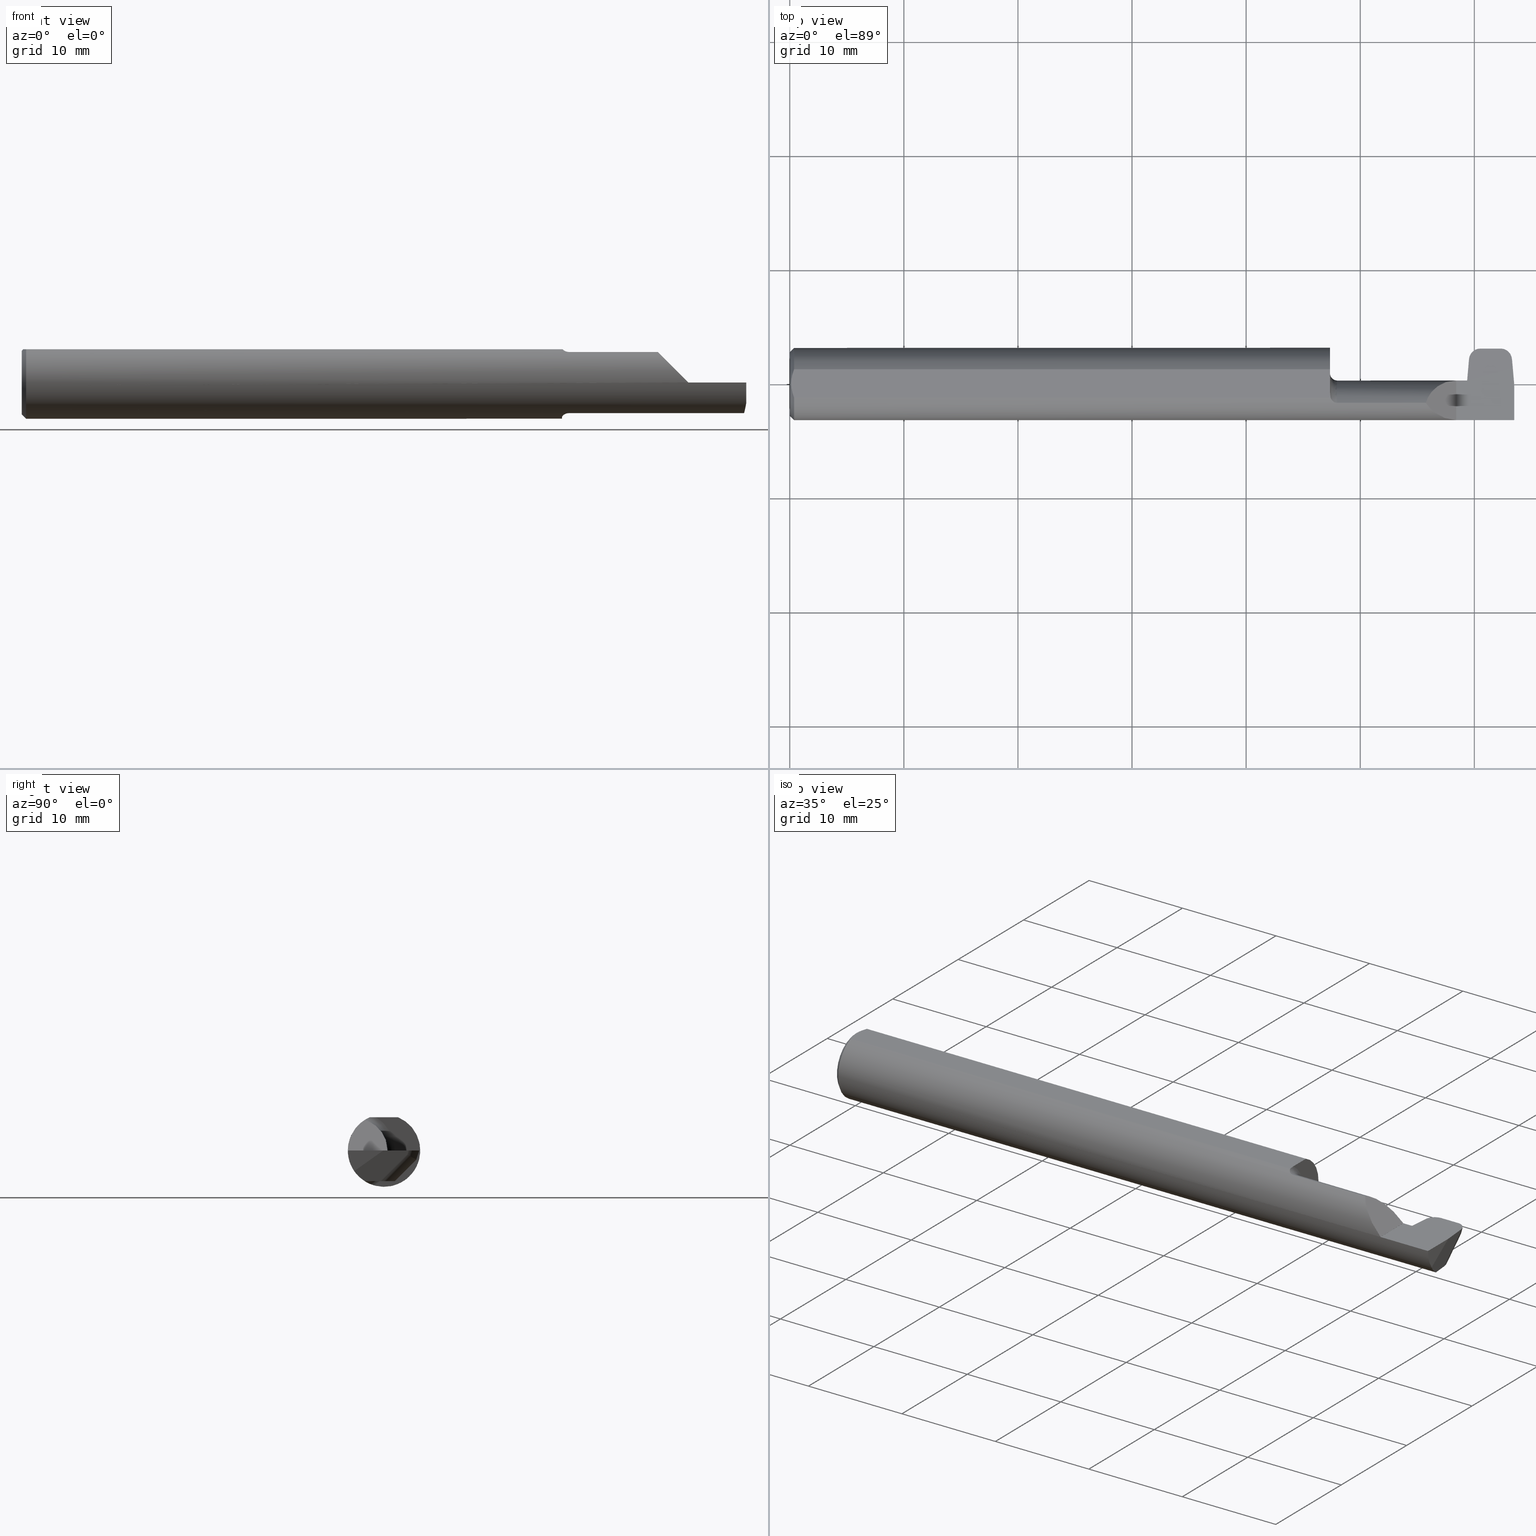
[diagram: canonical four-view strip — front | top / right | iso, engineering-drawing reading convention]
A machine part, canonical four-view strip (front | top / right | iso — engineering-drawing reading convention). The complete STEP part file that produces these views, byte-faithful:
ISO-10303-21;
HEADER;
FILE_DESCRIPTION (( 'STEP AP203' ),
    '1' );
FILE_NAME ('224804-GOR141-9.STEP',
    '2024-07-03T18:50:21',
    ( '' ),
    ( '' ),
    'SwSTEP 2.0',
    'SolidWorks 2024',
    '' );
FILE_SCHEMA (( 'CONFIG_CONTROL_DESIGN' ));
ENDSEC;

DATA;
#1 =( NAMED_UNIT ( * ) PLANE_ANGLE_UNIT ( ) SI_UNIT ( $, .RADIAN. ) );
#2 = EDGE_CURVE ( 'NONE', #185, #756, #686, .T. ) ;
#3 = CARTESIAN_POINT ( 'NONE',  ( 0.01499999999999915637, 0.000000000000000000, 0.000000000000000000 ) ) ;
#4 = EDGE_CURVE ( 'NONE', #500, #217, #409, .T. ) ;
#5 = ORIENTED_EDGE ( 'NONE', *, *, #709, .T. ) ;
#6 = DIRECTION ( 'NONE',  ( 0.02528153024484442249, -0.7068807693764396216, -0.7068807693764568301 ) ) ;
#7 = CARTESIAN_POINT ( 'NONE',  ( 2.300000000000000266, 0.1250000000000000000, 0.0003500000000001822508 ) ) ;
#8 = VERTEX_POINT ( 'NONE', #281 ) ;
#9 = CARTESIAN_POINT ( 'NONE',  ( 2.194839212967228281, -0.06674575881451201564, 0.1055107870327720992 ) ) ;
#10 = CARTESIAN_POINT ( 'NONE',  ( 2.391164219278092418, 0.05499064261695300881, -0.07725252948508441742 ) ) ;
#11 = DIRECTION ( 'NONE',  ( 0.000000000000000000, 0.000000000000000000, -1.000000000000000000 ) ) ;
#12 = EDGE_CURVE ( 'NONE', #202, #335, #482, .T. ) ;
#13 = DATE_AND_TIME ( #620, #583 ) ;
#14 = LINE ( 'NONE', #146, #286 ) ;
#15 = ORIENTED_EDGE ( 'NONE', *, *, #550, .F. ) ;
#16 =( BOUNDED_CURVE ( )  B_SPLINE_CURVE ( 3, ( #278, #763, #698, #836 ),
 .UNSPECIFIED., .F., .F. ) 
 B_SPLINE_CURVE_WITH_KNOTS ( ( 4, 4 ),
 ( 1.960722919233723216, 3.411297973623238722 ),
 .UNSPECIFIED. ) 
 CURVE ( )  GEOMETRIC_REPRESENTATION_ITEM ( )  RATIONAL_B_SPLINE_CURVE ( ( 1.000000000000000000, 0.8322058143701926980, 0.8322058143701926980, 1.000000000000000000 ) ) 
 REPRESENTATION_ITEM ( '' )  );
#17 = AXIS2_PLACEMENT_3D ( 'NONE', #232, #421, #499 ) ;
#18 = FACE_OUTER_BOUND ( 'NONE', #766, .T. ) ;
#19 = VECTOR ( 'NONE', #821, 39.37007874015748143 ) ;
#20 = FACE_OUTER_BOUND ( 'NONE', #382, .T. ) ;
#21 = LOCAL_TIME ( 11, 50, 21.00000000000000000, #23 ) ;
#22 = ORIENTED_EDGE ( 'NONE', *, *, #425, .F. ) ;
#23 = COORDINATED_UNIVERSAL_TIME_OFFSET ( 8, 0, .BEHIND. ) ;
#24 = APPROVAL ( #823, 'UNSPECIFIED' ) ;
#25 = CARTESIAN_POINT ( 'NONE',  ( 1.889000000000000012, -0.09784999999999999254, 0.000000000000000000 ) ) ;
#26 = LINE ( 'NONE', #293, #597 ) ;
#27 = ADVANCED_FACE ( 'NONE', ( #692 ), #851, .T. ) ;
#28 = ORIENTED_EDGE ( 'NONE', *, *, #392, .F. ) ;
#29 = PERSON ( 'UNSPECIFIED', 'UNSPECIFIED', 'UNSPECIFIED', ('UNSPECIFIED'), ('UNSPECIFIED'), ('UNSPECIFIED') ) ;
#30 = CARTESIAN_POINT ( 'NONE',  ( 2.335337347841493827, 0.01215000000000003751, -0.008981717422824315664 ) ) ;
#31 = CARTESIAN_POINT ( 'NONE',  ( 1.889000000000000012, -0.06674575881451197401, -0.1055107870327721270 ) ) ;
#32 = EDGE_CURVE ( 'NONE', #33, #149, #556, .T. ) ;
#33 = VERTEX_POINT ( 'NONE', #159 ) ;
#34 = APPROVAL_ROLE ( '' ) ;
#35 = DIRECTION ( 'NONE',  ( 0.08715574274765255924, -0.9961946980917459893, 0.000000000000000000 ) ) ;
#36 = CLOSED_SHELL ( 'NONE', ( #646, #460, #27, #641, #339, #614, #840, #748, #667, #693, #788, #873, #630, #856, #866, #71, #147, #304, #362, #277, #113, #83, #263, #592, #723 ) ) ;
#37 = CARTESIAN_POINT ( 'NONE',  ( 2.300000000000000266, 0.000000000000000000, 0.000000000000000000 ) ) ;
#38 = VECTOR ( 'NONE', #198, 39.37007874015748143 ) ;
#39 = ORIENTED_EDGE ( 'NONE', *, *, #586, .T. ) ;
#40 = VECTOR ( 'NONE', #45, 39.37007874015748854 ) ;
#41 = CARTESIAN_POINT ( 'NONE',  ( 2.387125195572338932, 0.03714530962163973410, -0.1055107870327721409 ) ) ;
#42 = DIRECTION ( 'NONE',  ( 0.08982109674372390495, -0.3077679217474507678, -0.9472122660328092802 ) ) ;
#43 = EDGE_LOOP ( 'NONE', ( #78, #513, #457, #796 ) ) ;
#44 = EDGE_CURVE ( 'NONE', #577, #161, #95, .T. ) ;
#45 = DIRECTION ( 'NONE',  ( 0.02528153024484438086, 0.7068807693764396216, 0.7068807693764567190 ) ) ;
#46 = DIRECTION ( 'NONE',  ( 0.000000000000000000, -0.8154497401906256604, -0.5788278856646776882 ) ) ;
#47 = VERTEX_POINT ( 'NONE', #157 ) ;
#48 = DIRECTION ( 'NONE',  ( -1.000000000000000000, -0.000000000000000000, -0.000000000000000000 ) ) ;
#49 = FACE_OUTER_BOUND ( 'NONE', #751, .T. ) ;
#50 = ORIENTED_EDGE ( 'NONE', *, *, #619, .F. ) ;
#51 = PERSON_AND_ORGANIZATION_ROLE ( 'design_supplier' ) ;
#52 = AXIS2_PLACEMENT_3D ( 'NONE', #351, #629, #300 ) ;
#53 = CARTESIAN_POINT ( 'NONE',  ( 0.004999999999933147331, 5.639788019834102201E-15, 0.1148500000000000076 ) ) ;
#54 = CARTESIAN_POINT ( 'NONE',  ( 2.500000000000000000, -0.1027548813330047828, -0.07091513845604555111 ) ) ;
#55 = EDGE_CURVE ( 'NONE', #577, #149, #576, .T. ) ;
#56 = VERTEX_POINT ( 'NONE', #352 ) ;
#57 = DIRECTION ( 'NONE',  ( 1.000000000000000000, -1.866018265709756019E-16, 0.000000000000000000 ) ) ;
#58 = DIRECTION ( 'NONE',  ( 1.000000000000000000, 0.000000000000000000, 0.000000000000000000 ) ) ;
#59 = LINE ( 'NONE', #808, #424 ) ;
#60 = VERTEX_POINT ( 'NONE', #427 ) ;
#61 = EDGE_CURVE ( 'NONE', #549, #835, #26, .T. ) ;
#62 = CARTESIAN_POINT ( 'NONE',  ( 2.327128570000001062, 0.09124830056250618493, -0.09510565162951588325 ) ) ;
#63 = CARTESIAN_POINT ( 'NONE',  ( 2.300000000000000266, 0.1250000000000000000, -2.465075339897404302E-17 ) ) ;
#64 = ORIENTED_EDGE ( 'NONE', *, *, #416, .T. ) ;
#65 = CC_DESIGN_PERSON_AND_ORGANIZATION_ASSIGNMENT ( #359, #226, ( #301 ) ) ;
#66 = AXIS2_PLACEMENT_3D ( 'NONE', #296, #418, #91 ) ;
#67 = VECTOR ( 'NONE', #699, 39.37007874015748143 ) ;
#68 = CARTESIAN_POINT ( 'NONE',  ( 2.490997743928008212, 0.08066582785904735653, -0.01375674391894995616 ) ) ;
#69 = LINE ( 'NONE', #156, #94 ) ;
#70 = ORIENTED_EDGE ( 'NONE', *, *, #772, .F. ) ;
#71 = ADVANCED_FACE ( 'NONE', ( #101 ), #361, .F. ) ;
#72 = CARTESIAN_POINT ( 'NONE',  ( 2.300000000000000266, -0.1248500000000000026, -2.465075339897404302E-17 ) ) ;
#73 = ORIENTED_EDGE ( 'NONE', *, *, #32, .T. ) ;
#74 = PLANE ( 'NONE',  #203 ) ;
#75 = APPROVAL_ROLE ( '' ) ;
#76 = APPLICATION_CONTEXT ( 'configuration controlled 3d designs of mechanical parts and assemblies' ) ;
#77 = CARTESIAN_POINT ( 'NONE',  ( 2.390444365961803985, -0.05565990018463554123, -0.1983159968390496852 ) ) ;
#78 = ORIENTED_EDGE ( 'NONE', *, *, #518, .T. ) ;
#79 = PERSON_AND_ORGANIZATION ( #29, #261 ) ;
#80 = VECTOR ( 'NONE', #527, 39.37007874015748854 ) ;
#81 = FACE_OUTER_BOUND ( 'NONE', #528, .T. ) ;
#82 = VERTEX_POINT ( 'NONE', #239 ) ;
#83 = ADVANCED_FACE ( 'NONE', ( #20 ), #489, .T. ) ;
#84 = EDGE_LOOP ( 'NONE', ( #605, #849, #865, #639, #64, #580 ) ) ;
#85 = CARTESIAN_POINT ( 'NONE',  ( 2.349311322083690090, 0.008882529890359631627, -0.02661140851596358395 ) ) ;
#86 = CARTESIAN_POINT ( 'NONE',  ( 2.300000000000000266, -0.09784999999999999254, 0.000000000000000000 ) ) ;
#87 = ORIENTED_EDGE ( 'NONE', *, *, #98, .T. ) ;
#88 = EDGE_CURVE ( 'NONE', #202, #813, #761, .T. ) ;
#89 = DIRECTION ( 'NONE',  ( 0.000000000000000000, 0.1218693434051476010, 0.9925461516413219831 ) ) ;
#90 = FACE_OUTER_BOUND ( 'NONE', #862, .T. ) ;
#91 = DIRECTION ( 'NONE',  ( 0.000000000000000000, 0.000000000000000000, 1.000000000000000000 ) ) ;
#92 = EDGE_LOOP ( 'NONE', ( #268, #245, #401, #345 ) ) ;
#93 = CARTESIAN_POINT ( 'NONE',  ( 2.334242751836523411, 0.01105540399502986069, -0.01789648648597845504 ) ) ;
#94 = VECTOR ( 'NONE', #532, 39.37007874015748143 ) ;
#95 = LINE ( 'NONE', #572, #753 ) ;
#96 = APPROVAL_PERSON_ORGANIZATION ( #471, #207, #75 ) ;
#97 = ORIENTED_EDGE ( 'NONE', *, *, #846, .T. ) ;
#98 = EDGE_CURVE ( 'NONE', #120, #500, #393, .T. ) ;
#99 = CARTESIAN_POINT ( 'NONE',  ( 2.387125195572338932, 0.03714530962163973410, -0.1055107870327721409 ) ) ;
#100 = EDGE_CURVE ( 'NONE', #533, #726, #553, .T. ) ;
#101 = FACE_OUTER_BOUND ( 'NONE', #84, .T. ) ;
#102 = ORIENTED_EDGE ( 'NONE', *, *, #656, .T. ) ;
#103 = CARTESIAN_POINT ( 'NONE',  ( 0.000000000000000000, 1.437123018799421600E-17, 0.1098500000000004473 ) ) ;
#104 = CARTESIAN_POINT ( 'NONE',  ( 0.004999999999999684384, 0.008366382319371040363, 0.1148500000000000076 ) ) ;
#105 = ORIENTED_EDGE ( 'NONE', *, *, #828, .F. ) ;
#106 =( BOUNDED_CURVE ( )  B_SPLINE_CURVE ( 3, ( #173, #655, #440, #733 ),
 .UNSPECIFIED., .F., .T. ) 
 B_SPLINE_CURVE_WITH_KNOTS ( ( 4, 4 ),
 ( 1.570796326794896558, 2.993710547156504642 ),
 .UNSPECIFIED. ) 
 CURVE ( )  GEOMETRIC_REPRESENTATION_ITEM ( )  RATIONAL_B_SPLINE_CURVE ( ( 1.000000000000000000, 0.8382741850914510184, 0.8382741850914510184, 1.000000000000000000 ) ) 
 REPRESENTATION_ITEM ( '' )  );
#107 = B_SPLINE_CURVE_WITH_KNOTS ( 'NONE', 3,
 ( #151, #542, #678, #465, #205, #811 ),
 .UNSPECIFIED., .F., .F.,
 ( 4, 2, 4 ),
 ( 0.000000000000000000, 0.0004112572997248626011, 0.0008225145994497252023 ),
 .UNSPECIFIED. ) ;
#108 = CARTESIAN_POINT ( 'NONE',  ( 0.000000000000000000, 0.1000000000000000056, 0.1148500000000000076 ) ) ;
#109 = CARTESIAN_POINT ( 'NONE',  ( 0.004999999999933147331, 5.639788019834102201E-15, 0.1148500000000000076 ) ) ;
#110 = CIRCLE ( 'NONE', #712, 0.1100000000000000422 ) ;
#111 = ORIENTED_EDGE ( 'NONE', *, *, #100, .F. ) ;
#112 = AXIS2_PLACEMENT_3D ( 'NONE', #728, #588, #863 ) ;
#113 = ADVANCED_FACE ( 'NONE', ( #765 ), #169, .T. ) ;
#114 = DIRECTION ( 'NONE',  ( 0.000000000000000000, -0.7071067811865558994, 0.7071067811865392461 ) ) ;
#115 = LINE ( 'NONE', #579, #727 ) ;
#116 = EDGE_LOOP ( 'NONE', ( #97, #148, #240, #325, #746, #5 ) ) ;
#117 = CARTESIAN_POINT ( 'NONE',  ( 2.500000000000000000, 0.000000000000000000, 0.000000000000000000 ) ) ;
#118 = DIRECTION ( 'NONE',  ( 0.000000000000000000, 0.7071067811865560104, -0.7071067811865391350 ) ) ;
#119 = DIRECTION ( 'NONE',  ( 0.000000000000000000, -0.9925461516413219831, 0.1218693434051477398 ) ) ;
#120 = VERTEX_POINT ( 'NONE', #707 ) ;
#121 = LINE ( 'NONE', #126, #453 ) ;
#122 = EDGE_CURVE ( 'NONE', #185, #8, #716, .T. ) ;
#123 = CARTESIAN_POINT ( 'NONE',  ( 2.100500000000000256, -0.06674575881451197401, 0.1055107870327721270 ) ) ;
#124 = ORIENTED_EDGE ( 'NONE', *, *, #470, .T. ) ;
#125 = CONICAL_SURFACE ( 'NONE', #613, 0.1248500000000000026, 0.7853981633974613796 ) ;
#126 = CARTESIAN_POINT ( 'NONE',  ( 2.100500000000000256, -0.06674575881451197401, -0.1055107870327721270 ) ) ;
#127 = LINE ( 'NONE', #123, #554 ) ;
#128 = EDGE_CURVE ( 'NONE', #236, #165, #365, .T. ) ;
#129 = LINE ( 'NONE', #590, #299 ) ;
#130 = B_SPLINE_CURVE_WITH_KNOTS ( 'NONE', 3,
 ( #53, #519, #379, #731, #525, #789 ),
 .UNSPECIFIED., .F., .F.,
 ( 4, 2, 4 ),
 ( 0.004071982807388159833, 0.004705731387952724089, 0.005339479968517289211 ),
 .UNSPECIFIED. ) ;
#131 = ORIENTED_EDGE ( 'NONE', *, *, #546, .T. ) ;
#132 = CARTESIAN_POINT ( 'NONE',  ( 1.864000000000000101, -0.03432117512376132301, 0.1148500000000000076 ) ) ;
#133 = CARTESIAN_POINT ( 'NONE',  ( 2.349311322083690090, -0.0004059415692871697003, -0.1022599378696818911 ) ) ;
#134 = CARTESIAN_POINT ( 'NONE',  ( 2.500000000000000000, -0.06674575881451196013, -0.1055107870327721409 ) ) ;
#135 = ORIENTED_EDGE ( 'NONE', *, *, #561, .T. ) ;
#136 =( BOUNDED_CURVE ( )  B_SPLINE_CURVE ( 3, ( #288, #360, #505, #356 ),
 .UNSPECIFIED., .F., .T. ) 
 B_SPLINE_CURVE_WITH_KNOTS ( ( 4, 4 ),
 ( 4.715192348093417252, 5.719141952225705872 ),
 .UNSPECIFIED. ) 
 CURVE ( )  GEOMETRIC_REPRESENTATION_ITEM ( )  RATIONAL_B_SPLINE_CURVE ( ( 1.000000000000000000, 0.9177560538299422976, 0.9177560538299422976, 1.000000000000000000 ) ) 
 REPRESENTATION_ITEM ( '' )  );
#137 = LINE ( 'NONE', #864, #381 ) ;
#138 = CARTESIAN_POINT ( 'NONE',  ( 2.443496313103738160, 0.08800526029345780155, -0.1050867032759625758 ) ) ;
#139 = EDGE_CURVE ( 'NONE', #120, #756, #858, .T. ) ;
#140 = AXIS2_PLACEMENT_3D ( 'NONE', #10, #280, #671 ) ;
#141 = PERSON_AND_ORGANIZATION_ROLE ( 'design_owner' ) ;
#142 = DIRECTION ( 'NONE',  ( 1.000000000000000000, -0.000000000000000000, -0.000000000000000000 ) ) ;
#143 = EDGE_LOOP ( 'NONE', ( #645, #254, #559, #466, #829 ) ) ;
#144 = FACE_OUTER_BOUND ( 'NONE', #116, .T. ) ;
#145 = ORIENTED_EDGE ( 'NONE', *, *, #326, .T. ) ;
#146 = CARTESIAN_POINT ( 'NONE',  ( 2.500000000000000000, -0.04895916665957456698, 0.1148500000000000076 ) ) ;
#147 = ADVANCED_FACE ( 'NONE', ( #49 ), #74, .F. ) ;
#148 = ORIENTED_EDGE ( 'NONE', *, *, #199, .T. ) ;
#149 = VERTEX_POINT ( 'NONE', #133 ) ;
#150 = AXIS2_PLACEMENT_3D ( 'NONE', #3, #142, #827 ) ;
#151 = CARTESIAN_POINT ( 'NONE',  ( 1.889000000000000012, -0.06674575881451197401, 0.1055107870327721270 ) ) ;
#152 = EDGE_CURVE ( 'NONE', #217, #82, #127, .T. ) ;
#153 = EDGE_LOOP ( 'NONE', ( #405, #331, #433, #491, #206, #265 ) ) ;
#154 = ORIENTED_EDGE ( 'NONE', *, *, #12, .T. ) ;
#155 = FACE_OUTER_BOUND ( 'NONE', #774, .T. ) ;
#156 = CARTESIAN_POINT ( 'NONE',  ( 2.500000000000000000, 0.1250000000000000000, -2.465075339897404302E-17 ) ) ;
#157 = CARTESIAN_POINT ( 'NONE',  ( 0.01499999999999914770, -0.04895916665957456698, 0.1148500000000000076 ) ) ;
#158 = DIRECTION ( 'NONE',  ( 0.000000000000000000, 0.000000000000000000, -1.000000000000000000 ) ) ;
#159 = CARTESIAN_POINT ( 'NONE',  ( 2.347992413048526572, 0.0006342409858723613942, -0.09378833079212686719 ) ) ;
#160 =( BOUNDED_CURVE ( )  B_SPLINE_CURVE ( 3, ( #312, #249, #664, #855 ),
 .UNSPECIFIED., .F., .F. ) 
 B_SPLINE_CURVE_WITH_KNOTS ( ( 4, 4 ),
 ( 2.859137914601454167, 2.870817887788822187 ),
 .UNSPECIFIED. ) 
 CURVE ( )  GEOMETRIC_REPRESENTATION_ITEM ( )  RATIONAL_B_SPLINE_CURVE ( ( 1.000000000000000000, 0.9999886315511723467, 0.9999886315511723467, 1.000000000000000000 ) ) 
 REPRESENTATION_ITEM ( '' )  );
#161 = VERTEX_POINT ( 'NONE', #861 ) ;
#162 = EDGE_CURVE ( 'NONE', #688, #8, #380, .T. ) ;
#163 = CARTESIAN_POINT ( 'NONE',  ( 0.01499999999999915637, 0.000000000000000000, 0.000000000000000000 ) ) ;
#164 = DIRECTION ( 'NONE',  ( -1.000000000000000000, -0.000000000000000000, -0.000000000000000000 ) ) ;
#165 = VERTEX_POINT ( 'NONE', #336 ) ;
#166 = CARTESIAN_POINT ( 'NONE',  ( 0.01192863036854219932, 0.04112691532340072287, 0.1148500000000000215 ) ) ;
#167 = EDGE_LOOP ( 'NONE', ( #632, #635, #722 ) ) ;
#168 = CARTESIAN_POINT ( 'NONE',  ( 2.353853663771942717, 0.02115949623966649137, -0.1055107870327721409 ) ) ;
#169 = PLANE ( 'NONE',  #17 ) ;
#170 = EDGE_CURVE ( 'NONE', #165, #504, #319, .T. ) ;
#171 = ORIENTED_EDGE ( 'NONE', *, *, #846, .F. ) ;
#172 = PLANE ( 'NONE',  #317 ) ;
#173 = CARTESIAN_POINT ( 'NONE',  ( 2.345130090190512107, 0.08066582785904743980, -0.01375674391894983126 ) ) ;
#174 = VECTOR ( 'NONE', #385, 39.37007874015748143 ) ;
#175 = VERTEX_POINT ( 'NONE', #444 ) ;
#176 = LOCAL_TIME ( 11, 50, 21.00000000000000000, #747 ) ;
#177 = CARTESIAN_POINT ( 'NONE',  ( 2.451688982964149499, 0.1122564753854528863, -0.03039962126895711172 ) ) ;
#178 = CARTESIAN_POINT ( 'NONE',  ( 2.497450015745279028, -0.09317139594753261200, -0.08480145278864946456 ) ) ;
#179 = DIRECTION ( 'NONE',  ( 0.1218693434051477675, 0.000000000000000000, 0.9925461516413219831 ) ) ;
#180 = UNCERTAINTY_MEASURE_WITH_UNIT (LENGTH_MEASURE( 1.000000000000000082E-05 ), #534, 'distance_accuracy_value', 'NONE');
#181 = VERTEX_POINT ( 'NONE', #194 ) ;
#182 = CARTESIAN_POINT ( 'NONE',  ( 2.385176605213636059, 0.1122803079667806792, -0.03037578868762933273 ) ) ;
#183 = DIRECTION ( 'NONE',  ( 0.9887692138764512251, -0.08650609705762357660, 0.1218693434051477675 ) ) ;
#184 = CARTESIAN_POINT ( 'NONE',  ( 2.300000000000000266, 0.1250000000000000000, -2.465075339897404302E-17 ) ) ;
#185 = VERTEX_POINT ( 'NONE', #802 ) ;
#186 = EDGE_CURVE ( 'NONE', #835, #804, #106, .T. ) ;
#187 = CARTESIAN_POINT ( 'NONE',  ( 2.384807223728418357, 0.1122723632664575921, -0.03038373338795243017 ) ) ;
#188 = DIRECTION ( 'NONE',  ( -0.02528153024484440861, -0.7068807693764398437, -0.7068807693764569411 ) ) ;
#189 = DIRECTION ( 'NONE',  ( -1.000000000000000000, 0.000000000000000000, 0.000000000000000000 ) ) ;
#190 = ORIENTED_EDGE ( 'NONE', *, *, #4, .T. ) ;
#191 = VECTOR ( 'NONE', #58, 39.37007874015748143 ) ;
#192 = AXIS2_PLACEMENT_3D ( 'NONE', #255, #514, #451 ) ;
#193 = FACE_OUTER_BOUND ( 'NONE', #792, .T. ) ;
#194 = CARTESIAN_POINT ( 'NONE',  ( 2.492585572526551108, -0.06674575881451196013, -0.1055107870327721409 ) ) ;
#195 = CARTESIAN_POINT ( 'NONE',  ( 2.500000000000000000, -0.0009548689054857433444, 0.001345214389594105850 ) ) ;
#196 = ORIENTED_EDGE ( 'NONE', *, *, #350, .F. ) ;
#197 = PERSON_AND_ORGANIZATION_ROLE ( 'creator' ) ;
#198 = DIRECTION ( 'NONE',  ( -1.000000000000000000, 1.140199659630180559E-15, 9.535978330592281795E-16 ) ) ;
#199 = EDGE_CURVE ( 'NONE', #531, #591, #805, .T. ) ;
#200 = ORIENTED_EDGE ( 'NONE', *, *, #386, .F. ) ;
#201 = LINE ( 'NONE', #7, #315 ) ;
#202 = VERTEX_POINT ( 'NONE', #784 ) ;
#203 = AXIS2_PLACEMENT_3D ( 'NONE', #454, #183, #729 ) ;
#204 = CARTESIAN_POINT ( 'NONE',  ( 0.000000000000000000, 0.000000000000000000, 0.000000000000000000 ) ) ;
#205 = CARTESIAN_POINT ( 'NONE',  ( 1.867833696467886773, -0.05373531148618881231, 0.1128139871958513674 ) ) ;
#206 = ORIENTED_EDGE ( 'NONE', *, *, #452, .F. ) ;
#207 = APPROVAL ( #402, 'UNSPECIFIED' ) ;
#208 = EDGE_CURVE ( 'NONE', #149, #175, #160, .T. ) ;
#209 = CARTESIAN_POINT ( 'NONE',  ( 2.249507022518907995, 0.01198878289334361948, 0.05084297748109223303 ) ) ;
#210 = PERSON_AND_ORGANIZATION ( #29, #261 ) ;
#211 = CARTESIAN_POINT ( 'NONE',  ( 2.487716168425373908, -0.01108821525477267540, -0.1055107870327721409 ) ) ;
#212 = CARTESIAN_POINT ( 'NONE',  ( 1.889000000000000012, -0.09784999999999999254, 0.000000000000000000 ) ) ;
#213 = FACE_OUTER_BOUND ( 'NONE', #487, .T. ) ;
#214 =( NAMED_UNIT ( * ) SI_UNIT ( $, .STERADIAN. ) SOLID_ANGLE_UNIT ( ) );
#215 = EDGE_CURVE ( 'NONE', #504, #549, #515, .T. ) ;
#216 = LINE ( 'NONE', #407, #497 ) ;
#217 = VERTEX_POINT ( 'NONE', #790 ) ;
#218 = DATE_AND_TIME ( #636, #782 ) ;
#219 = CIRCLE ( 'NONE', #150, 0.1248500000000000026 ) ;
#220 = CARTESIAN_POINT ( 'NONE',  ( 1.864000000000000101, -0.09784999999999999254, 0.000000000000000000 ) ) ;
#221 = ORIENTED_EDGE ( 'NONE', *, *, #375, .T. ) ;
#222 = DIRECTION ( 'NONE',  ( 1.000000000000000000, -0.000000000000000000, -0.000000000000000000 ) ) ;
#223 = CARTESIAN_POINT ( 'NONE',  ( 1.881166109659049512, -0.06565312228625852509, -0.1062163489814185457 ) ) ;
#224 = EDGE_CURVE ( 'NONE', #835, #33, #309, .T. ) ;
#225 = ORIENTED_EDGE ( 'NONE', *, *, #776, .F. ) ;
#226 = PERSON_AND_ORGANIZATION_ROLE ( 'classification_officer' ) ;
#227 = DIRECTION ( 'NONE',  ( 1.000000000000000000, 0.000000000000000000, 0.000000000000000000 ) ) ;
#228 = CARTESIAN_POINT ( 'NONE',  ( 1.871931173230982681, -0.05931078277131181242, -0.1099137017871685551 ) ) ;
#229 = ORIENTED_EDGE ( 'NONE', *, *, #298, .F. ) ;
#230 = DIRECTION ( 'NONE',  ( 0.000000000000000000, 0.000000000000000000, -1.000000000000000000 ) ) ;
#231 = VECTOR ( 'NONE', #267, 39.37007874015748143 ) ;
#232 = CARTESIAN_POINT ( 'NONE',  ( 2.349311322083690090, -0.09784999999999999254, 0.000000000000000000 ) ) ;
#233 = VERTEX_POINT ( 'NONE', #252 ) ;
#234 = EDGE_CURVE ( 'NONE', #161, #504, #115, .T. ) ;
#235 = CARTESIAN_POINT ( 'NONE',  ( 1.864000000000000101, -0.03544785385794579219, -0.1197120384792846048 ) ) ;
#236 = VERTEX_POINT ( 'NONE', #506 ) ;
#237 = DIRECTION ( 'NONE',  ( -0.000000000000000000, 0.000000000000000000, 1.000000000000000000 ) ) ;
#238 = EDGE_CURVE ( 'NONE', #181, #353, #341, .T. ) ;
#239 = CARTESIAN_POINT ( 'NONE',  ( 2.194839212967228281, -0.06674575881451201564, 0.1055107870327720992 ) ) ;
#240 = ORIENTED_EDGE ( 'NONE', *, *, #704, .T. ) ;
#241 = LINE ( 'NONE', #510, #412 ) ;
#242 = CARTESIAN_POINT ( 'NONE',  ( 2.346103776227583815, 0.05344121256280694870, -0.04098135921519095032 ) ) ;
#243 = CARTESIAN_POINT ( 'NONE',  ( 2.336440164071409420, 0.01215000000000004965, 0.000000000000000000 ) ) ;
#244 = AXIS2_PLACEMENT_3D ( 'NONE', #833, #222, #637 ) ;
#245 = ORIENTED_EDGE ( 'NONE', *, *, #208, .T. ) ;
#246 = AXIS2_PLACEMENT_3D ( 'NONE', #547, #399, #330 ) ;
#247 =( BOUNDED_CURVE ( )  B_SPLINE_CURVE ( 3, ( #775, #168, #706, #41 ),
 .UNSPECIFIED., .F., .F. ) 
 B_SPLINE_CURVE_WITH_KNOTS ( ( 4, 4 ),
 ( 5.008439892216507872, 6.308461453210433945 ),
 .UNSPECIFIED. ) 
 CURVE ( )  GEOMETRIC_REPRESENTATION_ITEM ( )  RATIONAL_B_SPLINE_CURVE ( ( 1.000000000000000000, 0.8640515161950578227, 0.8640515161950578227, 1.000000000000000000 ) ) 
 REPRESENTATION_ITEM ( '' )  );
#248 = CARTESIAN_POINT ( 'NONE',  ( 2.500000000000000000, -0.1248500000000000026, -2.465075339897404302E-17 ) ) ;
#249 = CARTESIAN_POINT ( 'NONE',  ( 2.349311322083690090, -0.001725711620333228143, -0.1033681942139379889 ) ) ;
#250 = ORIENTED_EDGE ( 'NONE', *, *, #709, .F. ) ;
#251 = DIRECTION ( 'NONE',  ( -0.000000000000000000, -1.000000000000000000, -0.000000000000000000 ) ) ;
#252 = CARTESIAN_POINT ( 'NONE',  ( 2.385546924955699755, 0.1122803079667807208, -0.03037578868762931192 ) ) ;
#253 = FACE_OUTER_BOUND ( 'NONE', #297, .T. ) ;
#254 = ORIENTED_EDGE ( 'NONE', *, *, #375, .F. ) ;
#255 = CARTESIAN_POINT ( 'NONE',  ( 1.864000000000000101, 0.2121500000000000608, 0.000000000000000000 ) ) ;
#256 = CARTESIAN_POINT ( 'NONE',  ( 2.500000000000000000, -0.1027548813330047828, -0.07091513845604555111 ) ) ;
#257 = CARTESIAN_POINT ( 'NONE',  ( 2.333172693961768740, 0.008882529890359628158, -0.02661140851596358395 ) ) ;
#258 = VECTOR ( 'NONE', #673, 39.37007874015748854 ) ;
#259 = EDGE_LOOP ( 'NONE', ( #15, #730, #111, #422 ) ) ;
#260 = VECTOR ( 'NONE', #611, 39.37007874015748143 ) ;
#261 = ORGANIZATION ( 'UNSPECIFIED', 'UNSPECIFIED', '' ) ;
#262 = DIRECTION ( 'NONE',  ( -7.897163799543889525E-16, -0.9510565162951573059, 0.3090169943749360160 ) ) ;
#263 = ADVANCED_FACE ( 'NONE', ( #520 ), #389, .T. ) ;
#264 = DIRECTION ( 'NONE',  ( 0.000000000000000000, 0.000000000000000000, -1.000000000000000000 ) ) ;
#265 = ORIENTED_EDGE ( 'NONE', *, *, #776, .T. ) ;
#266 = CYLINDRICAL_SURFACE ( 'NONE', #713, 0.1100000000000000283 ) ;
#267 = DIRECTION ( 'NONE',  ( -0.02528153024484440861, -0.7068807693764397326, -0.7068807693764569411 ) ) ;
#268 = ORIENTED_EDGE ( 'NONE', *, *, #55, .T. ) ;
#269 = ORIENTED_EDGE ( 'NONE', *, *, #32, .F. ) ;
#270 = DIRECTION ( 'NONE',  ( -1.000000000000000000, -0.000000000000000000, -0.000000000000000000 ) ) ;
#271 = ORIENTED_EDGE ( 'NONE', *, *, #452, .T. ) ;
#272 = EDGE_CURVE ( 'NONE', #233, #813, #377, .T. ) ;
#273 = AXIS2_PLACEMENT_3D ( 'NONE', #85, #540, #89 ) ;
#274 = CARTESIAN_POINT ( 'NONE',  ( 1.864000000000000101, -0.02689594796630704471, 0.1148500000000000076 ) ) ;
#275 = ORIENTED_EDGE ( 'NONE', *, *, #563, .F. ) ;
#276 = VERTEX_POINT ( 'NONE', #459 ) ;
#277 = ADVANCED_FACE ( 'NONE', ( #213 ), #615, .F. ) ;
#278 = CARTESIAN_POINT ( 'NONE',  ( 2.492302251767204435, 0.08513566491434629291, 0.000000000000000000 ) ) ;
#279 = CALENDAR_DATE ( 2024, 3, 7 ) ;
#280 = DIRECTION ( 'NONE',  ( -0.08982109674372389108, 0.3077679217474508233, 0.9472122660328095023 ) ) ;
#281 = CARTESIAN_POINT ( 'NONE',  ( 0.004999999999933147331, 5.639788019834102201E-15, 0.1148500000000000076 ) ) ;
#282 = APPROVAL_DATE_TIME ( #13, #24 ) ;
#283 = CARTESIAN_POINT ( 'NONE',  ( 2.472434491440696380, 0.1113617231881445374, -0.03129437346626542937 ) ) ;
#284 = ORIENTED_EDGE ( 'NONE', *, *, #98, .F. ) ;
#285 = VECTOR ( 'NONE', #558, 39.37007874015748143 ) ;
#286 = VECTOR ( 'NONE', #404, 39.37007874015748143 ) ;
#287 = APPROVAL_PERSON_ORGANIZATION ( #767, #780, #34 ) ;
#288 = CARTESIAN_POINT ( 'NONE',  ( 2.300000000000000266, -0.1248495094103296982, 0.0003500000000000749148 ) ) ;
#289 = EDGE_CURVE ( 'NONE', #522, #82, #492, .T. ) ;
#290 = DIRECTION ( 'NONE',  ( -0.08982109674372389108, -0.3077679217474507123, -0.9472122660328095023 ) ) ;
#291 = ORIENTED_EDGE ( 'NONE', *, *, #152, .F. ) ;
#292 = CARTESIAN_POINT ( 'NONE',  ( 2.345766828185320119, 0.1073242063295297422, -1.707404996040164512E-17 ) ) ;
#293 = CARTESIAN_POINT ( 'NONE',  ( 2.345791685421994011, 0.07839890174911512410, -0.02073362508748152061 ) ) ;
#294 = ORIENTED_EDGE ( 'NONE', *, *, #61, .F. ) ;
#295 = FACE_OUTER_BOUND ( 'NONE', #143, .T. ) ;
#296 = CARTESIAN_POINT ( 'NONE',  ( 2.500000000000000000, 0.000000000000000000, 0.000000000000000000 ) ) ;
#297 = EDGE_LOOP ( 'NONE', ( #701, #28 ) ) ;
#298 = EDGE_CURVE ( 'NONE', #662, #202, #16, .T. ) ;
#299 = VECTOR ( 'NONE', #461, 39.37007874015748143 ) ;
#300 = DIRECTION ( 'NONE',  ( 0.000000000000000000, 0.000000000000000000, -1.000000000000000000 ) ) ;
#301 = SECURITY_CLASSIFICATION ( '', '', #485 ) ;
#302 = CARTESIAN_POINT ( 'NONE',  ( 2.489063917059260334, 0.1221499999999998004, 0.000000000000000000 ) ) ;
#303 = EDGE_LOOP ( 'NONE', ( #221, #397 ) ) ;
#304 = ADVANCED_FACE ( 'NONE', ( #155 ), #661, .F. ) ;
#305 = CYLINDRICAL_SURFACE ( 'NONE', #697, 0.04000000000000000083 ) ;
#306 = CARTESIAN_POINT ( 'NONE',  ( 1.864000000000000101, 0.000000000000000000, 0.000000000000000000 ) ) ;
#307 = ORIENTED_EDGE ( 'NONE', *, *, #139, .T. ) ;
#308 = CARTESIAN_POINT ( 'NONE',  ( 2.337427846889238658, 0.01216344184561224395, 0.0001094750472970601533 ) ) ;
#309 = LINE ( 'NONE', #242, #569 ) ;
#310 = ORIENTED_EDGE ( 'NONE', *, *, #828, .T. ) ;
#311 = CARTESIAN_POINT ( 'NONE',  ( 2.491983719844224954, 0.1082340726405868897, 0.01381150086259024488 ) ) ;
#312 = CARTESIAN_POINT ( 'NONE',  ( 2.349311322083690090, -0.0004059415692871697003, -0.1022599378696818911 ) ) ;
#313 = EDGE_CURVE ( 'NONE', #366, #577, #110, .T. ) ;
#314 = DIRECTION ( 'NONE',  ( 1.000000000000000000, -0.000000000000000000, -0.000000000000000000 ) ) ;
#315 = VECTOR ( 'NONE', #400, 39.37007874015748143 ) ;
#316 = ORIENTED_EDGE ( 'NONE', *, *, #88, .F. ) ;
#317 = AXIS2_PLACEMENT_3D ( 'NONE', #117, #650, #376 ) ;
#318 = CARTESIAN_POINT ( 'NONE',  ( 2.450951228904883816, 0.1122803079667806514, -0.03037578868762934314 ) ) ;
#319 = LINE ( 'NONE', #725, #191 ) ;
#320 = DIRECTION ( 'NONE',  ( 0.000000000000000000, 0.000000000000000000, 1.000000000000000000 ) ) ;
#321 = ORIENTED_EDGE ( 'NONE', *, *, #44, .F. ) ;
#322 = FACE_OUTER_BOUND ( 'NONE', #446, .T. ) ;
#323 = DIRECTION ( 'NONE',  ( 0.7071067811865382469, 8.659560562355046257E-17, 0.7071067811865567876 ) ) ;
#324 = DIRECTION ( 'NONE',  ( 0.1209742911513550651, 0.1209742911513548153, 0.9852565360152929497 ) ) ;
#325 = ORIENTED_EDGE ( 'NONE', *, *, #425, .T. ) ;
#326 = EDGE_CURVE ( 'NONE', #738, #533, #129, .T. ) ;
#327 = DIRECTION ( 'NONE',  ( -0.000000000000000000, 1.000000000000000000, -0.000000000000000000 ) ) ;
#328 = ORIENTED_EDGE ( 'NONE', *, *, #215, .T. ) ;
#329 = VECTOR ( 'NONE', #390, 39.37007874015748143 ) ;
#330 = DIRECTION ( 'NONE',  ( 0.000000000000000000, -0.7071067811865389130, -0.7071067811865561215 ) ) ;
#331 = ORIENTED_EDGE ( 'NONE', *, *, #2, .F. ) ;
#332 = CC_DESIGN_PERSON_AND_ORGANIZATION_ASSIGNMENT ( #806, #197, ( #538 ) ) ;
#333 = DIRECTION ( 'NONE',  ( 0.000000000000000000, 0.000000000000000000, 1.000000000000000000 ) ) ;
#334 = LINE ( 'NONE', #607, #231 ) ;
#335 = VERTEX_POINT ( 'NONE', #395 ) ;
#336 = CARTESIAN_POINT ( 'NONE',  ( 2.336440164071409420, 0.01215000000000004965, 0.000000000000000000 ) ) ;
#337 = COORDINATED_UNIVERSAL_TIME_OFFSET ( 8, 0, .BEHIND. ) ;
#338 = CARTESIAN_POINT ( 'NONE',  ( 2.500000000000000000, 0.06674575881451200177, -0.1055107870327721409 ) ) ;
#339 = ADVANCED_FACE ( 'NONE', ( #516 ), #585, .F. ) ;
#340 = EDGE_LOOP ( 'NONE', ( #22, #428, #450, #145, #666, #658, #291, #844, #271, #124, #587, #545, #441, #87, #391 ) ) ;
#341 =( BOUNDED_CURVE ( )  B_SPLINE_CURVE ( 3, ( #373, #794, #178, #256 ),
 .UNSPECIFIED., .F., .T. ) 
 B_SPLINE_CURVE_WITH_KNOTS ( ( 4, 4 ),
 ( 1.181333927195137967, 1.584009842849273486 ),
 .UNSPECIFIED. ) 
 CURVE ( )  GEOMETRIC_REPRESENTATION_ITEM ( )  RATIONAL_B_SPLINE_CURVE ( ( 1.000000000000000000, 0.9865332596737929061, 0.9865332596737929061, 1.000000000000000000 ) ) 
 REPRESENTATION_ITEM ( '' )  );
#342 = AXIS2_PLACEMENT_3D ( 'NONE', #740, #816, #486 ) ;
#343 = CARTESIAN_POINT ( 'NONE',  ( 1.864000000000000101, -0.09784999999999999254, 0.000000000000000000 ) ) ;
#344 = CYLINDRICAL_SURFACE ( 'NONE', #140, 0.04000000000000000083 ) ;
#345 = ORIENTED_EDGE ( 'NONE', *, *, #313, .T. ) ;
#346 = COORDINATED_UNIVERSAL_TIME_OFFSET ( 8, 0, .BEHIND. ) ;
#347 = MANIFOLD_SOLID_BREP ( 'Fillet1', #36 ) ;
#348 = LINE ( 'NONE', #414, #260 ) ;
#349 = ORIENTED_EDGE ( 'NONE', *, *, #403, .F. ) ;
#350 = EDGE_CURVE ( 'NONE', #870, #662, #137, .T. ) ;
#351 = CARTESIAN_POINT ( 'NONE',  ( 0.000000000000000000, 0.000000000000000000, 0.000000000000000000 ) ) ;
#352 = CARTESIAN_POINT ( 'NONE',  ( 1.866165089549962186, -0.04895916665957456698, 0.1148500000000000076 ) ) ;
#353 = VERTEX_POINT ( 'NONE', #54 ) ;
#354 = AXIS2_PLACEMENT_3D ( 'NONE', #720, #876, #264 ) ;
#355 = CC_DESIGN_APPROVAL ( #780, ( #301 ) ) ;
#356 = CARTESIAN_POINT ( 'NONE',  ( 2.194839212967228281, -0.06674575881451201564, 0.1055107870327720992 ) ) ;
#357 = CARTESIAN_POINT ( 'NONE',  ( 2.349311322083690090, -0.0004059415692871697003, -0.1022599378696818911 ) ) ;
#358 = ORIENTED_EDGE ( 'NONE', *, *, #234, .T. ) ;
#359 = PERSON_AND_ORGANIZATION ( #29, #261 ) ;
#360 = CARTESIAN_POINT ( 'NONE',  ( 2.256362915931965585, -0.1247271782974887638, 0.04398708406803453902 ) ) ;
#361 = PLANE ( 'NONE',  #711 ) ;
#362 = ADVANCED_FACE ( 'NONE', ( #253 ), #791, .F. ) ;
#363 = ORIENTED_EDGE ( 'NONE', *, *, #507, .F. ) ;
#364 = LINE ( 'NONE', #368, #537 ) ;
#365 = LINE ( 'NONE', #370, #626 ) ;
#366 = VERTEX_POINT ( 'NONE', #795 ) ;
#367 = AXIS2_PLACEMENT_3D ( 'NONE', #108, #434, #847 ) ;
#368 = CARTESIAN_POINT ( 'NONE',  ( 2.481051614048140674, 0.06508798985161054484, -0.1055107870327721409 ) ) ;
#369 = LOCAL_TIME ( 11, 50, 21.00000000000000000, #337 ) ;
#370 = CARTESIAN_POINT ( 'NONE',  ( 1.864000000000000101, 0.01215000000000003230, -2.465075339897404302E-17 ) ) ;
#371 = VERTEX_POINT ( 'NONE', #455 ) ;
#372 = DIRECTION ( 'NONE',  ( -1.000000000000000000, -0.000000000000000000, -0.000000000000000000 ) ) ;
#373 = CARTESIAN_POINT ( 'NONE',  ( 2.492585572526551108, -0.06674575881451196013, -0.1055107870327721409 ) ) ;
#374 = ORIENTED_EDGE ( 'NONE', *, *, #481, .T. ) ;
#375 = EDGE_CURVE ( 'NONE', #690, #688, #797, .T. ) ;
#376 = DIRECTION ( 'NONE',  ( 0.000000000000000000, 0.000000000000000000, -1.000000000000000000 ) ) ;
#377 = LINE ( 'NONE', #651, #80 ) ;
#378 = ORIENTED_EDGE ( 'NONE', *, *, #224, .F. ) ;
#379 = CARTESIAN_POINT ( 'NONE',  ( 0.005933586687556474670, -0.01676171734555376158, 0.1148500000000000215 ) ) ;
#380 = LINE ( 'NONE', #584, #483 ) ;
#381 = VECTOR ( 'NONE', #512, 39.37007874015748854 ) ;
#382 = EDGE_LOOP ( 'NONE', ( #229, #196, #608, #70, #781 ) ) ;
#383 = LINE ( 'NONE', #659, #741 ) ;
#384 = CARTESIAN_POINT ( 'NONE',  ( 2.469780147758521505, 0.03714530962163986594, -0.1055107870327721548 ) ) ;
#385 = DIRECTION ( 'NONE',  ( -1.000000000000000000, -0.000000000000000000, -0.000000000000000000 ) ) ;
#386 = EDGE_CURVE ( 'NONE', #161, #415, #530, .T. ) ;
#387 = ORIENTED_EDGE ( 'NONE', *, *, #88, .T. ) ;
#388 = CARTESIAN_POINT ( 'NONE',  ( 1.864000000000000101, -0.02689594796630704471, 0.1148500000000000076 ) ) ;
#389 = CYLINDRICAL_SURFACE ( 'NONE', #684, 0.04000000000000000777 ) ;
#390 = DIRECTION ( 'NONE',  ( -1.000000000000000000, -0.000000000000000000, -0.000000000000000000 ) ) ;
#391 = ORIENTED_EDGE ( 'NONE', *, *, #735, .F. ) ;
#392 = EDGE_CURVE ( 'NONE', #415, #165, #59, .T. ) ;
#393 = B_SPLINE_CURVE_WITH_KNOTS ( 'NONE', 3,
 ( #235, #838, #834, #228, #435, #223, #769, #31 ),
 .UNSPECIFIED., .F., .F.,
 ( 4, 2, 2, 4 ),
 ( 0.000000000000000000, 0.0005958128942917653497, 0.0008937193414376426578, 0.001191625788583520074 ),
 .UNSPECIFIED. ) ;
#394 = MECHANICAL_CONTEXT ( 'NONE', #503, 'mechanical' ) ;
#395 = CARTESIAN_POINT ( 'NONE',  ( 2.450580909162820564, 0.1122803079667806514, -0.03037578868762937437 ) ) ;
#396 = AXIS2_PLACEMENT_3D ( 'NONE', #37, #567, #843 ) ;
#397 = ORIENTED_EDGE ( 'NONE', *, *, #800, .T. ) ;
#398 = AXIS2_PLACEMENT_3D ( 'NONE', #220, #689, #475 ) ;
#399 = DIRECTION ( 'NONE',  ( -1.319474169501345402E-16, -0.7071067811865561215, 0.7071067811865389130 ) ) ;
#400 = DIRECTION ( 'NONE',  ( 0.000000000000000000, -1.000000000000000000, 0.000000000000000000 ) ) ;
#401 = ORIENTED_EDGE ( 'NONE', *, *, #818, .T. ) ;
#402 = APPROVAL_STATUS ( 'not_yet_approved' ) ;
#403 = EDGE_CURVE ( 'NONE', #335, #233, #595, .T. ) ;
#404 = DIRECTION ( 'NONE',  ( -1.000000000000000000, -0.000000000000000000, -0.000000000000000000 ) ) ;
#405 = ORIENTED_EDGE ( 'NONE', *, *, #656, .F. ) ;
#406 = CALENDAR_DATE ( 2024, 3, 7 ) ;
#407 = CARTESIAN_POINT ( 'NONE',  ( 2.489063917059260334, 0.1221499999999998004, 0.000000000000000000 ) ) ;
#408 = ORIENTED_EDGE ( 'NONE', *, *, #403, .T. ) ;
#409 = CIRCLE ( 'NONE', #669, 0.1100000000000000283 ) ;
#410 = ORIENTED_EDGE ( 'NONE', *, *, #735, .T. ) ;
#411 = AXIS2_PLACEMENT_3D ( 'NONE', #785, #521, #179 ) ;
#412 = VECTOR ( 'NONE', #251, 39.37007874015748143 ) ;
#413 = DIRECTION ( 'NONE',  ( 0.000000000000000000, -0.3090169943749360160, -0.9510565162951573059 ) ) ;
#414 = CARTESIAN_POINT ( 'NONE',  ( 0.01499999999999915637, 0.000000000000000000, -0.1248500000000000026 ) ) ;
#415 = VERTEX_POINT ( 'NONE', #257 ) ;
#416 = EDGE_CURVE ( 'NONE', #276, #353, #803, .T. ) ;
#417 = CARTESIAN_POINT ( 'NONE',  ( 2.382666486481432422, 0.1221499999999997865, -2.465075339897404302E-17 ) ) ;
#418 = DIRECTION ( 'NONE',  ( -1.000000000000000000, -0.000000000000000000, -0.000000000000000000 ) ) ;
#419 = DATE_TIME_ROLE ( 'classification_date' ) ;
#420 = CARTESIAN_POINT ( 'NONE',  ( 0.000000000000000000, 0.000000000000000000, -0.1098500000000004473 ) ) ;
#421 = DIRECTION ( 'NONE',  ( -1.000000000000000000, 0.000000000000000000, 0.000000000000000000 ) ) ;
#422 = ORIENTED_EDGE ( 'NONE', *, *, #431, .T. ) ;
#423 =( BOUNDED_CURVE ( )  B_SPLINE_CURVE ( 3, ( #417, #633, #292, #837 ),
 .UNSPECIFIED., .F., .T. ) 
 B_SPLINE_CURVE_WITH_KNOTS ( ( 4, 4 ),
 ( 6.013479987146147288, 7.464055041535657686 ),
 .UNSPECIFIED. ) 
 CURVE ( )  GEOMETRIC_REPRESENTATION_ITEM ( )  RATIONAL_B_SPLINE_CURVE ( ( 1.000000000000000000, 0.8322058143701936972, 0.8322058143701936972, 1.000000000000000000 ) ) 
 REPRESENTATION_ITEM ( '' )  );
#424 = VECTOR ( 'NONE', #324, 39.37007874015748143 ) ;
#425 = EDGE_CURVE ( 'NONE', #181, #366, #734, .T. ) ;
#426 = PLANE ( 'NONE',  #456 ) ;
#427 = CARTESIAN_POINT ( 'NONE',  ( 0.01499999999999915637, 0.000000000000000000, -0.1248500000000000026 ) ) ;
#428 = ORIENTED_EDGE ( 'NONE', *, *, #238, .T. ) ;
#429 =( BOUNDED_CURVE ( )  B_SPLINE_CURVE ( 3, ( #793, #187, #182, #447 ),
 .UNSPECIFIED., .F., .T. ) 
 B_SPLINE_CURVE_WITH_KNOTS ( ( 4, 4 ),
 ( 0.01807338777464690197, 0.04573422180255540259 ),
 .UNSPECIFIED. ) 
 CURVE ( )  GEOMETRIC_REPRESENTATION_ITEM ( )  RATIONAL_B_SPLINE_CURVE ( ( 1.000000000000000000, 0.9999362408714059791, 0.9999362408714059791, 1.000000000000000000 ) ) 
 REPRESENTATION_ITEM ( '' )  );
#430 = CARTESIAN_POINT ( 'NONE',  ( 2.492302251767204435, 0.08513566491434629291, 0.000000000000000000 ) ) ;
#431 = EDGE_CURVE ( 'NONE', #533, #236, #665, .T. ) ;
#432 = CARTESIAN_POINT ( 'NONE',  ( 0.009419795109434097105, 0.03314228182474765472, 0.1148499999999999938 ) ) ;
#433 = ORIENTED_EDGE ( 'NONE', *, *, #122, .T. ) ;
#434 = DIRECTION ( 'NONE',  ( -0.000000000000000000, 0.000000000000000000, -1.000000000000000000 ) ) ;
#435 = CARTESIAN_POINT ( 'NONE',  ( 1.874619184248488502, -0.06191677978697745360, -0.1084368831979592024 ) ) ;
#436 = ORIENTED_EDGE ( 'NONE', *, *, #496, .F. ) ;
#437 = AXIS2_PLACEMENT_3D ( 'NONE', #562, #290, #634 ) ;
#438 = AXIS2_PLACEMENT_3D ( 'NONE', #25, #227, #158 ) ;
#439 = LINE ( 'NONE', #311, #40 ) ;
#440 = CARTESIAN_POINT ( 'NONE',  ( 2.363693342677823495, 0.1113617231881445652, -0.03129437346626539468 ) ) ;
#441 = ORIENTED_EDGE ( 'NONE', *, *, #139, .F. ) ;
#442 = EDGE_CURVE ( 'NONE', #738, #353, #670, .T. ) ;
#443 = PLANE ( 'NONE',  #192 ) ;
#444 = CARTESIAN_POINT ( 'NONE',  ( 2.349311322083690090, -0.004292389249275789000, -0.1055107870327721409 ) ) ;
#445 = CARTESIAN_POINT ( 'NONE',  ( 2.349311322083690090, -0.09784999999999999254, 0.000000000000000000 ) ) ;
#446 = EDGE_LOOP ( 'NONE', ( #408, #596, #316, #154 ) ) ;
#447 = CARTESIAN_POINT ( 'NONE',  ( 2.385546924955699755, 0.1122803079667807208, -0.03037578868762931192 ) ) ;
#448 = DIRECTION ( 'NONE',  ( 1.000000000000000000, 0.000000000000000000, 0.000000000000000000 ) ) ;
#449 = CARTESIAN_POINT ( 'NONE',  ( 1.864000000000000101, 0.008882529890359655914, -0.02661140851596339313 ) ) ;
#450 = ORIENTED_EDGE ( 'NONE', *, *, #442, .F. ) ;
#451 = DIRECTION ( 'NONE',  ( 0.000000000000000000, 0.000000000000000000, -1.000000000000000000 ) ) ;
#452 = EDGE_CURVE ( 'NONE', #56, #47, #14, .T. ) ;
#453 = VECTOR ( 'NONE', #48, 39.37007874015748143 ) ;
#454 = CARTESIAN_POINT ( 'NONE',  ( 2.337440164071409310, 0.01215000000000004965, 0.000000000000000000 ) ) ;
#455 = CARTESIAN_POINT ( 'NONE',  ( 2.451688982964149499, 0.1122564753854528863, -0.03039962126895711172 ) ) ;
#456 = AXIS2_PLACEMENT_3D ( 'NONE', #488, #560, #237 ) ;
#457 = ORIENTED_EDGE ( 'NONE', *, *, #199, .F. ) ;
#458 = DIRECTION ( 'NONE',  ( -0.1109828012386699508, 0.1211164744642410640, 0.9864145261717157664 ) ) ;
#459 = CARTESIAN_POINT ( 'NONE',  ( 2.500000000000000000, -0.002850000000000199596, 0.000000000000000000 ) ) ;
#460 = ADVANCED_FACE ( 'NONE', ( #144 ), #878, .F. ) ;
#461 = DIRECTION ( 'NONE',  ( -1.000000000000000000, -0.000000000000000000, -0.000000000000000000 ) ) ;
#462 = ORIENTED_EDGE ( 'NONE', *, *, #392, .T. ) ;
#463 = ORIENTED_EDGE ( 'NONE', *, *, #289, .F. ) ;
#464 = PERSON_AND_ORGANIZATION ( #29, #261 ) ;
#465 = CARTESIAN_POINT ( 'NONE',  ( 1.870521963996438108, -0.05807460526863036238, 0.1105848119017751735 ) ) ;
#466 = ORIENTED_EDGE ( 'NONE', *, *, #470, .F. ) ;
#467 = VECTOR ( 'NONE', #327, 39.37007874015748143 ) ;
#468 = CC_DESIGN_SECURITY_CLASSIFICATION ( #301, ( #538 ) ) ;
#469 = ORIENTED_EDGE ( 'NONE', *, *, #186, .T. ) ;
#470 = EDGE_CURVE ( 'NONE', #47, #60, #219, .T. ) ;
#471 = PERSON_AND_ORGANIZATION ( #29, #261 ) ;
#472 = DIRECTION ( 'NONE',  ( 0.000000000000000000, 0.000000000000000000, 1.000000000000000000 ) ) ;
#473 = ORIENTED_EDGE ( 'NONE', *, *, #215, .F. ) ;
#474 = PERSON_AND_ORGANIZATION_ROLE ( 'creator' ) ;
#475 = DIRECTION ( 'NONE',  ( 0.000000000000000000, 0.000000000000000000, -1.000000000000000000 ) ) ;
#476 = ORIENTED_EDGE ( 'NONE', *, *, #170, .F. ) ;
#477 = EDGE_LOOP ( 'NONE', ( #102, #374, #307 ) ) ;
#478 = CARTESIAN_POINT ( 'NONE',  ( 2.209116973875248302, -0.01831320643403844955, 0.09123302612475124584 ) ) ;
#479 = APPROVAL_ROLE ( '' ) ;
#480 = CARTESIAN_POINT ( 'NONE',  ( 1.889000000000000012, -0.06674575881451197401, -0.1055107870327721270 ) ) ;
#481 = EDGE_CURVE ( 'NONE', #495, #120, #642, .T. ) ;
#482 = LINE ( 'NONE', #138, #258 ) ;
#483 = VECTOR ( 'NONE', #323, 39.37007874015748143 ) ;
#484 = AXIS2_PLACEMENT_3D ( 'NONE', #204, #333, #810 ) ;
#485 = SECURITY_CLASSIFICATION_LEVEL ( 'unclassified' ) ;
#486 = DIRECTION ( 'NONE',  ( 0.000000000000000000, 0.000000000000000000, -1.000000000000000000 ) ) ;
#487 = EDGE_LOOP ( 'NONE', ( #649, #73, #736, #681 ) ) ;
#488 = CARTESIAN_POINT ( 'NONE',  ( 2.300000000000000266, 0.1250000000000000000, -2.465075339897404302E-17 ) ) ;
#489 = CYLINDRICAL_SURFACE ( 'NONE', #437, 0.04000000000000000083 ) ;
#490 = CC_DESIGN_DATE_AND_TIME_ASSIGNMENT ( #218, #419, ( #301 ) ) ;
#491 = ORIENTED_EDGE ( 'NONE', *, *, #807, .T. ) ;
#492 =( BOUNDED_CURVE ( )  B_SPLINE_CURVE ( 3, ( #819, #209, #478, #9 ),
 .UNSPECIFIED., .F., .T. ) 
 B_SPLINE_CURVE_WITH_KNOTS ( ( 4, 4 ),
 ( 4.715570803935303701, 5.996508910626888067 ),
 .UNSPECIFIED. ) 
 CURVE ( )  GEOMETRIC_REPRESENTATION_ITEM ( )  RATIONAL_B_SPLINE_CURVE ( ( 1.000000000000000000, 0.8678770354264943032, 0.8678770354264943032, 1.000000000000000000 ) ) 
 REPRESENTATION_ITEM ( '' )  );
#493 = CARTESIAN_POINT ( 'NONE',  ( 1.864000000000000101, 0.1000000000000000056, 0.1148500000000000076 ) ) ;
#494 = CARTESIAN_POINT ( 'NONE',  ( 2.347992413048526572, 0.0006342409858723613942, -0.09378833079212686719 ) ) ;
#495 = VERTEX_POINT ( 'NONE', #274 ) ;
#496 = EDGE_CURVE ( 'NONE', #662, #276, #216, .T. ) ;
#497 = VECTOR ( 'NONE', #824, 39.37007874015748143 ) ;
#498 = CARTESIAN_POINT ( 'NONE',  ( 2.336440164071409420, 0.01215000000000004965, 0.000000000000000000 ) ) ;
#499 = DIRECTION ( 'NONE',  ( 0.000000000000000000, 0.000000000000000000, 1.000000000000000000 ) ) ;
#500 = VERTEX_POINT ( 'NONE', #480 ) ;
#501 = CARTESIAN_POINT ( 'NONE',  ( 0.01499999999999915637, 0.000000000000000000, 0.000000000000000000 ) ) ;
#502 = CARTESIAN_POINT ( 'NONE',  ( 2.348754866574787048, -6.457864475360864775E-05, -0.09947975995461390275 ) ) ;
#503 = APPLICATION_CONTEXT ( 'configuration controlled 3d designs of mechanical parts and assemblies' ) ;
#504 = VERTEX_POINT ( 'NONE', #622 ) ;
#505 = CARTESIAN_POINT ( 'NONE',  ( 2.218168021404921753, -0.1036236216557786111, 0.08218197859507844760 ) ) ;
#506 = CARTESIAN_POINT ( 'NONE',  ( 2.300000000000000266, 0.01215000000000003230, -2.465075339897404302E-17 ) ) ;
#507 = EDGE_CURVE ( 'NONE', #690, #60, #348, .T. ) ;
#508 = ORIENTED_EDGE ( 'NONE', *, *, #152, .T. ) ;
#509 = AXIS2_PLACEMENT_3D ( 'NONE', #163, #768, #230 ) ;
#510 = CARTESIAN_POINT ( 'NONE',  ( 2.349311322083690090, -0.06674575881451196013, -0.1055107870327721409 ) ) ;
#511 = DIRECTION ( 'NONE',  ( -0.1109828012386699508, 0.1211164744642410640, 0.9864145261717157664 ) ) ;
#512 = DIRECTION ( 'NONE',  ( 0.08982109674372389108, 0.3077679217474506568, 0.9472122660328092802 ) ) ;
#513 = ORIENTED_EDGE ( 'NONE', *, *, #743, .F. ) ;
#514 = DIRECTION ( 'NONE',  ( 1.000000000000000000, 0.000000000000000000, 0.000000000000000000 ) ) ;
#515 = LINE ( 'NONE', #648, #598 ) ;
#516 = FACE_OUTER_BOUND ( 'NONE', #536, .T. ) ;
#517 = ORIENTED_EDGE ( 'NONE', *, *, #619, .T. ) ;
#518 = EDGE_CURVE ( 'NONE', #371, #870, #621, .T. ) ;
#519 = CARTESIAN_POINT ( 'NONE',  ( 0.004999999999998236758, -0.008410179126392275384, 0.1148500000000000215 ) ) ;
#520 = FACE_OUTER_BOUND ( 'NONE', #43, .T. ) ;
#521 = DIRECTION ( 'NONE',  ( -0.9925461516413219831, 1.807656808653687829E-15, 0.1218693434051477675 ) ) ;
#522 = VERTEX_POINT ( 'NONE', #551 ) ;
#523 =( BOUNDED_CURVE ( )  B_SPLINE_CURVE ( 3, ( #695, #93, #30, #498 ),
 .UNSPECIFIED., .F., .T. ) 
 B_SPLINE_CURVE_WITH_KNOTS ( ( 4, 4 ),
 ( 1.326450231515704070, 1.570796326794911879 ),
 .UNSPECIFIED. ) 
 CURVE ( )  GEOMETRIC_REPRESENTATION_ITEM ( )  RATIONAL_B_SPLINE_CURVE ( ( 1.000000000000000000, 0.9950307677608813961, 0.9950307677608813961, 1.000000000000000000 ) ) 
 REPRESENTATION_ITEM ( '' )  );
#524 = EDGE_CURVE ( 'NONE', #522, #726, #201, .T. ) ;
#525 = CARTESIAN_POINT ( 'NONE',  ( 0.01198609678885614524, -0.04127345953699167180, 0.1148499999999999938 ) ) ;
#526 = AXIS2_PLACEMENT_3D ( 'NONE', #338, #548, #604 ) ;
#527 = DIRECTION ( 'NONE',  ( -0.08982109674372389108, 0.3077679217474507678, 0.9472122660328092802 ) ) ;
#528 = EDGE_LOOP ( 'NONE', ( #552, #105, #568, #294, #50 ) ) ;
#529 = CARTESIAN_POINT ( 'NONE',  ( 0.000000000000000000, 0.000000000000000000, 0.000000000000000000 ) ) ;
#530 = LINE ( 'NONE', #449, #174 ) ;
#531 = VERTEX_POINT ( 'NONE', #535 ) ;
#532 = DIRECTION ( 'NONE',  ( -0.000000000000000000, 1.000000000000000000, -0.000000000000000000 ) ) ;
#533 = VERTEX_POINT ( 'NONE', #72 ) ;
#534 =( CONVERSION_BASED_UNIT ( 'INCH', #602 ) LENGTH_UNIT ( ) NAMED_UNIT ( #565 ) );
#535 = CARTESIAN_POINT ( 'NONE',  ( 2.449002638546181387, 0.03714530962163972022, -0.1055107870327721409 ) ) ;
#536 = EDGE_LOOP ( 'NONE', ( #387, #517, #473, #476, #696, #600, #879, #135, #436, #627 ) ) ;
#537 = VECTOR ( 'NONE', #35, 39.37007874015748143 ) ;
#538 = PRODUCT_DEFINITION_FORMATION_WITH_SPECIFIED_SOURCE ( 'ANY', '', #708, .NOT_KNOWN. ) ;
#539 = ORIENTED_EDGE ( 'NONE', *, *, #122, .F. ) ;
#540 = DIRECTION ( 'NONE',  ( 0.000000000000000000, 0.9925461516413219831, -0.1218693434051476010 ) ) ;
#541 = DATE_AND_TIME ( #279, #369 ) ;
#542 = CARTESIAN_POINT ( 'NONE',  ( 1.883512926777241914, -0.06674575881451197401, 0.1055107870327721131 ) ) ;
#543 = CARTESIAN_POINT ( 'NONE',  ( 2.500000000000000000, 0.04895916665957456698, 0.1148500000000000076 ) ) ;
#544 = CC_DESIGN_DATE_AND_TIME_ASSIGNMENT ( #682, #616, ( #601 ) ) ;
#545 = ORIENTED_EDGE ( 'NONE', *, *, #2, .T. ) ;
#546 = EDGE_CURVE ( 'NONE', #371, #531, #334, .T. ) ;
#547 = CARTESIAN_POINT ( 'NONE',  ( 2.510000000000000231, -0.05352195167279216736, -0.1961780483272062281 ) ) ;
#548 = DIRECTION ( 'NONE',  ( -0.000000000000000000, 0.000000000000000000, 1.000000000000000000 ) ) ;
#549 = VERTEX_POINT ( 'NONE', #683 ) ;
#550 = EDGE_CURVE ( 'NONE', #522, #236, #845, .T. ) ;
#551 = CARTESIAN_POINT ( 'NONE',  ( 2.300000000000000266, 0.01214944318040891459, 0.0003500000000001822508 ) ) ;
#552 = ORIENTED_EDGE ( 'NONE', *, *, #272, .F. ) ;
#553 = CIRCLE ( 'NONE', #396, 0.1248500000000000026 ) ;
#554 = VECTOR ( 'NONE', #448, 39.37007874015748143 ) ;
#555 =( GEOMETRIC_REPRESENTATION_CONTEXT ( 3 ) GLOBAL_UNCERTAINTY_ASSIGNED_CONTEXT ( ( #180 ) ) GLOBAL_UNIT_ASSIGNED_CONTEXT ( ( #534, #1, #214 ) ) REPRESENTATION_CONTEXT ( 'NONE', 'WORKASPACE' ) );
#556 =( BOUNDED_CURVE ( )  B_SPLINE_CURVE ( 3, ( #494, #700, #502, #357 ),
 .UNSPECIFIED., .F., .T. ) 
 B_SPLINE_CURVE_WITH_KNOTS ( ( 4, 4 ),
 ( 1.698928905159846403, 1.833501537714896434 ),
 .UNSPECIFIED. ) 
 CURVE ( )  GEOMETRIC_REPRESENTATION_ITEM ( )  RATIONAL_B_SPLINE_CURVE ( ( 1.000000000000000000, 0.9984914198443630706, 0.9984914198443630706, 1.000000000000000000 ) ) 
 REPRESENTATION_ITEM ( '' )  );
#557 = PLANE ( 'NONE',  #367 ) ;
#558 = DIRECTION ( 'NONE',  ( -1.000000000000000000, 8.303569413842311969E-16, 0.000000000000000000 ) ) ;
#559 = ORIENTED_EDGE ( 'NONE', *, *, #507, .T. ) ;
#560 = DIRECTION ( 'NONE',  ( -1.000000000000000000, 0.000000000000000000, -0.000000000000000000 ) ) ;
#561 = EDGE_CURVE ( 'NONE', #738, #276, #69, .T. ) ;
#562 = CARTESIAN_POINT ( 'NONE',  ( 2.443496313103738160, 0.04996299964165151763, -0.09272602350096513513 ) ) ;
#563 = EDGE_CURVE ( 'NONE', #217, #56, #107, .T. ) ;
#564 = ORIENTED_EDGE ( 'NONE', *, *, #61, .T. ) ;
#565 = DIMENSIONAL_EXPONENTS ( 1.000000000000000000, 0.000000000000000000, 0.000000000000000000, 0.000000000000000000, 0.000000000000000000, 0.000000000000000000, 0.000000000000000000 ) ;
#566 = DIRECTION ( 'NONE',  ( 1.000000000000000000, -0.000000000000000000, -0.000000000000000000 ) ) ;
#567 = DIRECTION ( 'NONE',  ( -1.000000000000000000, -0.000000000000000000, -0.000000000000000000 ) ) ;
#568 = ORIENTED_EDGE ( 'NONE', *, *, #186, .F. ) ;
#569 = VECTOR ( 'NONE', #6, 39.37007874015748854 ) ;
#570 = AXIS2_PLACEMENT_3D ( 'NONE', #529, #372, #647 ) ;
#571 = FACE_OUTER_BOUND ( 'NONE', #831, .T. ) ;
#572 = CARTESIAN_POINT ( 'NONE',  ( 2.349311322083690090, 0.008882529890359631627, -0.02661140851596358395 ) ) ;
#573 = ORIENTED_EDGE ( 'NONE', *, *, #234, .F. ) ;
#574 = PRODUCT_DEFINITION_SHAPE ( 'NONE', 'NONE',  #601 ) ;
#575 = CARTESIAN_POINT ( 'NONE',  ( 2.390444365961803985, -0.08394417143209778609, -0.1700317255915881065 ) ) ;
#576 = LINE ( 'NONE', #631, #871 ) ;
#577 = VERTEX_POINT ( 'NONE', #745 ) ;
#578 = CARTESIAN_POINT ( 'NONE',  ( 1.866165089549962186, -0.04895916665957456698, 0.1148500000000000076 ) ) ;
#579 = CARTESIAN_POINT ( 'NONE',  ( 2.337427846889238658, 0.01216344184561224395, 0.0001094750472970601533 ) ) ;
#580 = ORIENTED_EDGE ( 'NONE', *, *, #238, .F. ) ;
#581 = COORDINATED_UNIVERSAL_TIME_OFFSET ( 8, 0, .BEHIND. ) ;
#582 = LINE ( 'NONE', #308, #672 ) ;
#583 = LOCAL_TIME ( 11, 50, 21.00000000000000000, #346 ) ;
#584 = CARTESIAN_POINT ( 'NONE',  ( 0.01499999999999915637, 1.528971528735470422E-17, 0.1248500000000000026 ) ) ;
#585 = PLANE ( 'NONE',  #771 ) ;
#586 = EDGE_CURVE ( 'NONE', #680, #804, #759, .T. ) ;
#587 = ORIENTED_EDGE ( 'NONE', *, *, #679, .T. ) ;
#588 = DIRECTION ( 'NONE',  ( -0.7071067811865475727, 0.000000000000000000, -0.7071067811865475727 ) ) ;
#589 = CARTESIAN_POINT ( 'NONE',  ( 2.485174287515220293, 0.01796561649567682967, -0.1055107870327721548 ) ) ;
#590 = CARTESIAN_POINT ( 'NONE',  ( 2.500000000000000000, -0.1248500000000000026, -2.465075339897404302E-17 ) ) ;
#591 = VERTEX_POINT ( 'NONE', #211 ) ;
#592 = ADVANCED_FACE ( 'NONE', ( #81 ), #344, .T. ) ;
#593 = CARTESIAN_POINT ( 'NONE',  ( 1.864000000000000101, 0.04895916665957456698, 0.1148500000000000076 ) ) ;
#594 = DIRECTION ( 'NONE',  ( 1.000000000000000000, 0.000000000000000000, 0.000000000000000000 ) ) ;
#595 = LINE ( 'NONE', #869, #38 ) ;
#596 = ORIENTED_EDGE ( 'NONE', *, *, #272, .T. ) ;
#597 = VECTOR ( 'NONE', #42, 39.37007874015748854 ) ;
#598 = VECTOR ( 'NONE', #868, 39.37007874015748854 ) ;
#599 = APPROVAL_PERSON_ORGANIZATION ( #79, #24, #479 ) ;
#600 = ORIENTED_EDGE ( 'NONE', *, *, #431, .F. ) ;
#601 = PRODUCT_DEFINITION ( 'UNKNOWN', '', #538, #721 ) ;
#602 = LENGTH_MEASURE_WITH_UNIT ( LENGTH_MEASURE( 0.02539999999999999897 ), #674 );
#603 = EDGE_CURVE ( 'NONE', #726, #82, #136, .T. ) ;
#604 = DIRECTION ( 'NONE',  ( 1.000000000000000000, 0.000000000000000000, 0.000000000000000000 ) ) ;
#605 = ORIENTED_EDGE ( 'NONE', *, *, #704, .F. ) ;
#606 = APPLICATION_PROTOCOL_DEFINITION ( 'international standard', 'config_control_design', 1994, #76 ) ;
#607 = CARTESIAN_POINT ( 'NONE',  ( 2.445800991112761835, -0.05237391564239946701, -0.1950300122968135208 ) ) ;
#608 = ORIENTED_EDGE ( 'NONE', *, *, #518, .F. ) ;
#609 = CARTESIAN_POINT ( 'NONE',  ( 2.449002638546181387, 0.03714530962163972022, -0.1055107870327721409 ) ) ;
#610 = APPLICATION_PROTOCOL_DEFINITION ( 'international standard', 'config_control_design', 1994, #503 ) ;
#611 = DIRECTION ( 'NONE',  ( 0.7071067811865382469, 0.000000000000000000, -0.7071067811865567876 ) ) ;
#612 = ORIENTED_EDGE ( 'NONE', *, *, #679, .F. ) ;
#613 = AXIS2_PLACEMENT_3D ( 'NONE', #501, #566, #842 ) ;
#614 = ADVANCED_FACE ( 'NONE', ( #779 ), #426, .F. ) ;
#615 = PLANE ( 'NONE',  #273 ) ;
#616 = DATE_TIME_ROLE ( 'creation_date' ) ;
#617 = CARTESIAN_POINT ( 'NONE',  ( 2.490997743928008212, 0.08066582785904735653, -0.01375674391894995616 ) ) ;
#618 = DIRECTION ( 'NONE',  ( 1.000000000000000000, 0.000000000000000000, 0.000000000000000000 ) ) ;
#619 = EDGE_CURVE ( 'NONE', #813, #549, #423, .T. ) ;
#620 = CALENDAR_DATE ( 2024, 3, 7 ) ;
#621 =( BOUNDED_CURVE ( )  B_SPLINE_CURVE ( 3, ( #675, #283, #754, #617 ),
 .UNSPECIFIED., .F., .F. ) 
 B_SPLINE_CURVE_WITH_KNOTS ( ( 4, 4 ),
 ( 0.1478821064332886681, 1.570796326794896558 ),
 .UNSPECIFIED. ) 
 CURVE ( )  GEOMETRIC_REPRESENTATION_ITEM ( )  RATIONAL_B_SPLINE_CURVE ( ( 1.000000000000000000, 0.8382741850914510184, 0.8382741850914510184, 1.000000000000000000 ) ) 
 REPRESENTATION_ITEM ( '' )  );
#622 = CARTESIAN_POINT ( 'NONE',  ( 2.337440164071409310, 0.01215000000000004965, 0.000000000000000000 ) ) ;
#623 = ORIENTED_EDGE ( 'NONE', *, *, #550, .T. ) ;
#624 = FACE_OUTER_BOUND ( 'NONE', #303, .T. ) ;
#625 = DIRECTION ( 'NONE',  ( -0.9887692138764512251, -0.08650609705762361823, 0.1218693434051477675 ) ) ;
#626 = VECTOR ( 'NONE', #643, 39.37007874015748143 ) ;
#627 = ORIENTED_EDGE ( 'NONE', *, *, #298, .T. ) ;
#628 = CIRCLE ( 'NONE', #244, 0.1248500000000000026 ) ;
#629 = DIRECTION ( 'NONE',  ( 1.000000000000000000, 0.000000000000000000, 0.000000000000000000 ) ) ;
#630 = ADVANCED_FACE ( 'NONE', ( #90 ), #815, .F. ) ;
#631 = CARTESIAN_POINT ( 'NONE',  ( 2.349311322083690090, 0.008882529890359631627, -0.02661140851596358395 ) ) ;
#632 = ORIENTED_EDGE ( 'NONE', *, *, #524, .F. ) ;
#633 = CARTESIAN_POINT ( 'NONE',  ( 2.361324239368718825, 0.1221499999999996061, -1.707404996040164512E-17 ) ) ;
#634 = DIRECTION ( 'NONE',  ( 0.000000000000000000, 0.9510565162951574170, -0.3090169943749358494 ) ) ;
#635 = ORIENTED_EDGE ( 'NONE', *, *, #289, .T. ) ;
#636 = CALENDAR_DATE ( 2024, 3, 7 ) ;
#637 = DIRECTION ( 'NONE',  ( 0.000000000000000000, 0.000000000000000000, -1.000000000000000000 ) ) ;
#638 = DIRECTION ( 'NONE',  ( 0.1223279114424238589, 0.000000000000000000, 0.9924897390311572254 ) ) ;
#639 = ORIENTED_EDGE ( 'NONE', *, *, #496, .T. ) ;
#640 = VECTOR ( 'NONE', #822, 39.37007874015748143 ) ;
#641 = ADVANCED_FACE ( 'NONE', ( #691 ), #557, .F. ) ;
#642 = CIRCLE ( 'NONE', #398, 0.1350000000000000366 ) ;
#643 = DIRECTION ( 'NONE',  ( 1.000000000000000000, 0.000000000000000000, 0.000000000000000000 ) ) ;
#644 =( BOUNDED_CURVE ( )  B_SPLINE_CURVE ( 3, ( #875, #318, #867, #177 ),
 .UNSPECIFIED., .F., .F. ) 
 B_SPLINE_CURVE_WITH_KNOTS ( ( 4, 4 ),
 ( 3.095858431787230636, 3.123519265815139168 ),
 .UNSPECIFIED. ) 
 CURVE ( )  GEOMETRIC_REPRESENTATION_ITEM ( )  RATIONAL_B_SPLINE_CURVE ( ( 1.000000000000000000, 0.9999362408714059791, 0.9999362408714059791, 1.000000000000000000 ) ) 
 REPRESENTATION_ITEM ( '' )  );
#645 = ORIENTED_EDGE ( 'NONE', *, *, #162, .F. ) ;
#646 = ADVANCED_FACE ( 'NONE', ( #18 ), #872, .T. ) ;
#647 = DIRECTION ( 'NONE',  ( 0.000000000000000000, 0.000000000000000000, -1.000000000000000000 ) ) ;
#648 = CARTESIAN_POINT ( 'NONE',  ( 2.337440164071409310, 0.01215000000000004965, 0.000000000000000000 ) ) ;
#649 = ORIENTED_EDGE ( 'NONE', *, *, #762, .F. ) ;
#650 = DIRECTION ( 'NONE',  ( 1.000000000000000000, 0.000000000000000000, 0.000000000000000000 ) ) ;
#651 = CARTESIAN_POINT ( 'NONE',  ( 2.391164219278092418, 0.09303290326875929273, -0.08961320926008185805 ) ) ;
#652 = ORIENTED_EDGE ( 'NONE', *, *, #386, .T. ) ;
#653 = AXIS2_PLACEMENT_3D ( 'NONE', #306, #594, #715 ) ;
#654 = PLANE ( 'NONE',  #112 ) ;
#655 = CARTESIAN_POINT ( 'NONE',  ( 2.348062513822159136, 0.09879994324858172583, -0.02467646027986499652 ) ) ;
#656 = EDGE_CURVE ( 'NONE', #756, #495, #764, .T. ) ;
#657 = DIRECTION ( 'NONE',  ( 0.000000000000000000, -0.1218693434051477398, -0.9925461516413219831 ) ) ;
#658 = ORIENTED_EDGE ( 'NONE', *, *, #603, .T. ) ;
#659 = CARTESIAN_POINT ( 'NONE',  ( 2.500000000000000000, 0.03714530962163971328, -0.1055107870327721409 ) ) ;
#660 = CARTESIAN_POINT ( 'NONE',  ( 2.487716168425373908, -0.01108821525477267540, -0.1055107870327721409 ) ) ;
#661 = PLANE ( 'NONE',  #859 ) ;
#662 = VERTEX_POINT ( 'NONE', #430 ) ;
#663 = PLANE ( 'NONE',  #798 ) ;
#664 = CARTESIAN_POINT ( 'NONE',  ( 2.349311322083690090, -0.003021208908106685822, -0.1044518229207946486 ) ) ;
#665 = LINE ( 'NONE', #63, #467 ) ;
#666 = ORIENTED_EDGE ( 'NONE', *, *, #100, .T. ) ;
#667 = ADVANCED_FACE ( 'NONE', ( #624 ), #702, .F. ) ;
#668 = FACE_OUTER_BOUND ( 'NONE', #825, .T. ) ;
#669 = AXIS2_PLACEMENT_3D ( 'NONE', #212, #618, #11 ) ;
#670 = CIRCLE ( 'NONE', #342, 0.1248500000000000026 ) ;
#671 = DIRECTION ( 'NONE',  ( 0.000000000000000000, -0.9510565162951573059, 0.3090169943749360715 ) ) ;
#672 = VECTOR ( 'NONE', #458, 39.37007874015748854 ) ;
#673 = DIRECTION ( 'NONE',  ( -0.08982109674372386332, -0.3077679217474506568, -0.9472122660328092802 ) ) ;
#674 =( LENGTH_UNIT ( ) NAMED_UNIT ( * ) SI_UNIT ( $, .METRE. ) );
#675 = CARTESIAN_POINT ( 'NONE',  ( 2.451688982964149499, 0.1122564753854528863, -0.03039962126895711172 ) ) ;
#676 = ORIENTED_EDGE ( 'NONE', *, *, #162, .T. ) ;
#677 = DIRECTION ( 'NONE',  ( 0.000000000000000000, 0.000000000000000000, 1.000000000000000000 ) ) ;
#678 = CARTESIAN_POINT ( 'NONE',  ( 1.878295400938418958, -0.06462416334000620211, 0.1068895594202840249 ) ) ;
#679 = EDGE_CURVE ( 'NONE', #60, #185, #628, .T. ) ;
#680 = VERTEX_POINT ( 'NONE', #99 ) ;
#681 = ORIENTED_EDGE ( 'NONE', *, *, #44, .T. ) ;
#682 = DATE_AND_TIME ( #406, #176 ) ;
#683 = CARTESIAN_POINT ( 'NONE',  ( 2.343825582351315884, 0.08513566491434633454, 0.000000000000000000 ) ) ;
#684 = AXIS2_PLACEMENT_3D ( 'NONE', #719, #188, #118 ) ;
#685 = EDGE_CURVE ( 'NONE', #415, #165, #523, .T. ) ;
#686 = LINE ( 'NONE', #543, #640 ) ;
#687 = CIRCLE ( 'NONE', #570, 0.1098500000000004473 ) ;
#688 = VERTEX_POINT ( 'NONE', #103 ) ;
#689 = DIRECTION ( 'NONE',  ( -1.000000000000000000, -0.000000000000000000, -0.000000000000000000 ) ) ;
#690 = VERTEX_POINT ( 'NONE', #420 ) ;
#691 = FACE_OUTER_BOUND ( 'NONE', #153, .T. ) ;
#692 = FACE_OUTER_BOUND ( 'NONE', #340, .T. ) ;
#693 = ADVANCED_FACE ( 'NONE', ( #295 ), #125, .T. ) ;
#694 = SHAPE_DEFINITION_REPRESENTATION ( #574, #801 ) ;
#695 = CARTESIAN_POINT ( 'NONE',  ( 2.333172693961768740, 0.008882529890359628158, -0.02661140851596358395 ) ) ;
#696 = ORIENTED_EDGE ( 'NONE', *, *, #128, .F. ) ;
#697 = AXIS2_PLACEMENT_3D ( 'NONE', #575, #850, #114 ) ;
#698 = CARTESIAN_POINT ( 'NONE',  ( 2.474803594749801938, 0.1221499999999996616, -1.707404996040164203E-17 ) ) ;
#699 = DIRECTION ( 'NONE',  ( 0.000000000000000000, -1.000000000000000000, 0.000000000000000000 ) ) ;
#700 = CARTESIAN_POINT ( 'NONE',  ( 2.348314566001024950, 0.0002826727301661635140, -0.09665162445967678817 ) ) ;
#701 = ORIENTED_EDGE ( 'NONE', *, *, #685, .T. ) ;
#702 = PLANE ( 'NONE',  #52 ) ;
#703 = CARTESIAN_POINT ( 'NONE',  ( 0.005949639560152591468, 0.01681318950603462661, 0.1148500000000000076 ) ) ;
#704 = EDGE_CURVE ( 'NONE', #591, #181, #364, .T. ) ;
#705 = ORIENTED_EDGE ( 'NONE', *, *, #561, .F. ) ;
#706 = CARTESIAN_POINT ( 'NONE',  ( 2.368441479729632260, 0.03714530962163970634, -0.1055107870327721409 ) ) ;
#707 = CARTESIAN_POINT ( 'NONE',  ( 1.864000000000000101, -0.03544785385794579219, -0.1197120384792846048 ) ) ;
#708 = PRODUCT ( '224804-GOR141-9', '224804-GOR141-9', '', ( #394 ) ) ;
#709 = EDGE_CURVE ( 'NONE', #175, #680, #247, .T. ) ;
#710 = EDGE_LOOP ( 'NONE', ( #171, #39, #310, #349, #839, #131 ) ) ;
#711 = AXIS2_PLACEMENT_3D ( 'NONE', #302, #625, #638 ) ;
#712 = AXIS2_PLACEMENT_3D ( 'NONE', #445, #314, #320 ) ;
#713 = AXIS2_PLACEMENT_3D ( 'NONE', #343, #270, #677 ) ;
#714 = CARTESIAN_POINT ( 'NONE',  ( 1.864890775228045472, -0.04165898946242331535, 0.1148500000000000076 ) ) ;
#715 = DIRECTION ( 'NONE',  ( 0.000000000000000000, 0.000000000000000000, -1.000000000000000000 ) ) ;
#716 = B_SPLINE_CURVE_WITH_KNOTS ( 'NONE', 3,
 ( #773, #166, #432, #703, #104, #109 ),
 .UNSPECIFIED., .F., .F.,
 ( 4, 2, 4 ),
 ( 0.002811086258179029771, 0.003441534532783594585, 0.004071982807388159833 ),
 .UNSPECIFIED. ) ;
#717 = ORIENTED_EDGE ( 'NONE', *, *, #128, .T. ) ;
#718 = CARTESIAN_POINT ( 'NONE',  ( 2.300000000000000266, -0.1248495094103296982, 0.0003500000000000749148 ) ) ;
#719 = CARTESIAN_POINT ( 'NONE',  ( 2.445800991112761835, -0.08065818688986171880, -0.1667457410493519421 ) ) ;
#720 = CARTESIAN_POINT ( 'NONE',  ( 0.000000000000000000, 0.000000000000000000, 0.000000000000000000 ) ) ;
#721 = DESIGN_CONTEXT ( 'detailed design', #76, 'design' ) ;
#722 = ORIENTED_EDGE ( 'NONE', *, *, #603, .F. ) ;
#723 = ADVANCED_FACE ( 'NONE', ( #571 ), #305, .T. ) ;
#724 = FACE_OUTER_BOUND ( 'NONE', #167, .T. ) ;
#725 = CARTESIAN_POINT ( 'NONE',  ( 2.336440164071409420, 0.01215000000000004965, 0.000000000000000000 ) ) ;
#726 = VERTEX_POINT ( 'NONE', #718 ) ;
#727 = VECTOR ( 'NONE', #511, 39.37007874015748854 ) ;
#728 = CARTESIAN_POINT ( 'NONE',  ( 2.185500000000000220, 0.1000000000000000056, 0.1148500000000000076 ) ) ;
#729 = DIRECTION ( 'NONE',  ( 0.1223279114424238589, 0.000000000000000000, -0.9924897390311572254 ) ) ;
#730 = ORIENTED_EDGE ( 'NONE', *, *, #524, .T. ) ;
#731 = CARTESIAN_POINT ( 'NONE',  ( 0.009468318732755824640, -0.03334632524505316137, 0.1148499999999999660 ) ) ;
#732 = CC_DESIGN_PERSON_AND_ORGANIZATION_ASSIGNMENT ( #210, #474, ( #601 ) ) ;
#733 = CARTESIAN_POINT ( 'NONE',  ( 2.384438851154370820, 0.1122564753854529279, -0.03039962126895710479 ) ) ;
#734 = LINE ( 'NONE', #134, #329 ) ;
#735 = EDGE_CURVE ( 'NONE', #366, #500, #121, .T. ) ;
#736 = ORIENTED_EDGE ( 'NONE', *, *, #55, .F. ) ;
#737 = DIRECTION ( 'NONE',  ( -0.000000000000000000, 0.000000000000000000, -1.000000000000000000 ) ) ;
#738 = VERTEX_POINT ( 'NONE', #248 ) ;
#739 = VECTOR ( 'NONE', #46, 39.37007874015748854 ) ;
#740 = CARTESIAN_POINT ( 'NONE',  ( 2.500000000000000000, 0.000000000000000000, 0.000000000000000000 ) ) ;
#741 = VECTOR ( 'NONE', #57, 39.37007874015748143 ) ;
#742 = ORIENTED_EDGE ( 'NONE', *, *, #313, .F. ) ;
#743 = EDGE_CURVE ( 'NONE', #591, #870, #439, .T. ) ;
#744 = PLANE ( 'NONE',  #246 ) ;
#745 = CARTESIAN_POINT ( 'NONE',  ( 2.349311322083690090, 0.008882529890359631627, -0.02661140851596358395 ) ) ;
#746 = ORIENTED_EDGE ( 'NONE', *, *, #818, .F. ) ;
#747 = COORDINATED_UNIVERSAL_TIME_OFFSET ( 8, 0, .BEHIND. ) ;
#748 = ADVANCED_FACE ( 'NONE', ( #193 ), #172, .T. ) ;
#749 = DIRECTION ( 'NONE',  ( -1.000000000000000000, -0.000000000000000000, -0.000000000000000000 ) ) ;
#750 = ORIENTED_EDGE ( 'NONE', *, *, #224, .T. ) ;
#751 = EDGE_LOOP ( 'NONE', ( #564, #750, #809, #358, #328 ) ) ;
#752 = FACE_OUTER_BOUND ( 'NONE', #710, .T. ) ;
#753 = VECTOR ( 'NONE', #164, 39.37007874015748143 ) ;
#754 = CARTESIAN_POINT ( 'NONE',  ( 2.488065320296361183, 0.09879994324858169807, -0.02467646027986504509 ) ) ;
#755 = AXIS2_PLACEMENT_3D ( 'NONE', #86, #749, #472 ) ;
#756 = VERTEX_POINT ( 'NONE', #593 ) ;
#757 = ORIENTED_EDGE ( 'NONE', *, *, #170, .T. ) ;
#758 = APPROVAL_DATE_TIME ( #787, #780 ) ;
#759 = LINE ( 'NONE', #77, #19 ) ;
#760 = CC_DESIGN_PERSON_AND_ORGANIZATION_ASSIGNMENT ( #464, #141, ( #708 ) ) ;
#761 = LINE ( 'NONE', #848, #285 ) ;
#762 = EDGE_CURVE ( 'NONE', #33, #161, #582, .T. ) ;
#763 = CARTESIAN_POINT ( 'NONE',  ( 2.490361005933200200, 0.1073242063295298254, -1.707404996040164203E-17 ) ) ;
#764 = LINE ( 'NONE', #493, #67 ) ;
#765 = FACE_OUTER_BOUND ( 'NONE', #92, .T. ) ;
#766 = EDGE_LOOP ( 'NONE', ( #877, #676, #539, #612, #363 ) ) ;
#767 = PERSON_AND_ORGANIZATION ( #29, #261 ) ;
#768 = DIRECTION ( 'NONE',  ( 1.000000000000000000, -0.000000000000000000, -0.000000000000000000 ) ) ;
#769 = CARTESIAN_POINT ( 'NONE',  ( 1.885021003568511988, -0.06674575881451201564, -0.1055107870327721409 ) ) ;
#770 = ORIENTED_EDGE ( 'NONE', *, *, #208, .F. ) ;
#771 = AXIS2_PLACEMENT_3D ( 'NONE', #184, #737, #189 ) ;
#772 = EDGE_CURVE ( 'NONE', #335, #371, #644, .T. ) ;
#773 = CARTESIAN_POINT ( 'NONE',  ( 0.01499999999999915637, 0.04895916665957456698, 0.1148500000000000076 ) ) ;
#774 = EDGE_LOOP ( 'NONE', ( #573, #652, #462, #757 ) ) ;
#775 = CARTESIAN_POINT ( 'NONE',  ( 2.349311322083690090, -0.004292389249275789000, -0.1055107870327721409 ) ) ;
#776 = EDGE_CURVE ( 'NONE', #56, #495, #814, .T. ) ;
#777 = DIRECTION ( 'NONE',  ( 0.000000000000000000, -0.1218693434051476010, -0.9925461516413219831 ) ) ;
#778 = ORIENTED_EDGE ( 'NONE', *, *, #442, .T. ) ;
#779 = FACE_OUTER_BOUND ( 'NONE', #259, .T. ) ;
#780 = APPROVAL ( #832, 'UNSPECIFIED' ) ;
#781 = ORIENTED_EDGE ( 'NONE', *, *, #12, .F. ) ;
#782 = LOCAL_TIME ( 11, 50, 21.00000000000000000, #581 ) ;
#783 = CARTESIAN_POINT ( 'NONE',  ( 2.345130090190512107, 0.08066582785904743980, -0.01375674391894983126 ) ) ;
#784 = CARTESIAN_POINT ( 'NONE',  ( 2.453461347637087897, 0.1221499999999997310, -2.465075339897404302E-17 ) ) ;
#785 = CARTESIAN_POINT ( 'NONE',  ( 2.336440164071409420, 0.1621500000000000163, 0.000000000000000000 ) ) ;
#786 = ORIENTED_EDGE ( 'NONE', *, *, #481, .F. ) ;
#787 = DATE_AND_TIME ( #841, #21 ) ;
#788 = ADVANCED_FACE ( 'NONE', ( #854 ), #443, .T. ) ;
#789 = CARTESIAN_POINT ( 'NONE',  ( 0.01499999999999914770, -0.04895916665957456698, 0.1148500000000000076 ) ) ;
#790 = CARTESIAN_POINT ( 'NONE',  ( 1.889000000000000012, -0.06674575881451197401, 0.1055107870327721270 ) ) ;
#791 = PLANE ( 'NONE',  #411 ) ;
#792 = EDGE_LOOP ( 'NONE', ( #880, #705, #778 ) ) ;
#793 = CARTESIAN_POINT ( 'NONE',  ( 2.384438851154370820, 0.1122564753854529279, -0.03039962126895710479 ) ) ;
#794 = CARTESIAN_POINT ( 'NONE',  ( 2.494944802869536904, -0.08100450677091575180, -0.09649075241015640791 ) ) ;
#795 = CARTESIAN_POINT ( 'NONE',  ( 2.349311322083690090, -0.06674575881451196013, -0.1055107870327721409 ) ) ;
#796 = ORIENTED_EDGE ( 'NONE', *, *, #546, .F. ) ;
#797 = CIRCLE ( 'NONE', #354, 0.1098500000000004473 ) ;
#798 = AXIS2_PLACEMENT_3D ( 'NONE', #62, #262, #413 ) ;
#799 = CARTESIAN_POINT ( 'NONE',  ( 2.382666486481432422, 0.1221499999999997865, -2.465075339897404302E-17 ) ) ;
#800 = EDGE_CURVE ( 'NONE', #688, #690, #687, .T. ) ;
#801 = ADVANCED_BREP_SHAPE_REPRESENTATION ( '224804-GOR141-9', ( #347, #484 ), #555 ) ;
#802 = CARTESIAN_POINT ( 'NONE',  ( 0.01499999999999915637, 0.04895916665957456698, 0.1148500000000000076 ) ) ;
#803 = LINE ( 'NONE', #195, #739 ) ;
#804 = VERTEX_POINT ( 'NONE', #860 ) ;
#805 =( BOUNDED_CURVE ( )  B_SPLINE_CURVE ( 3, ( #609, #384, #589, #660 ),
 .UNSPECIFIED., .F., .T. ) 
 B_SPLINE_CURVE_WITH_KNOTS ( ( 4, 4 ),
 ( 3.116316507558938742, 4.539230727920552155 ),
 .UNSPECIFIED. ) 
 CURVE ( )  GEOMETRIC_REPRESENTATION_ITEM ( )  RATIONAL_B_SPLINE_CURVE ( ( 1.000000000000000000, 0.8382741850914499082, 0.8382741850914499082, 1.000000000000000000 ) ) 
 REPRESENTATION_ITEM ( '' )  );
#806 = PERSON_AND_ORGANIZATION ( #29, #261 ) ;
#807 = EDGE_CURVE ( 'NONE', #8, #47, #130, .T. ) ;
#808 = CARTESIAN_POINT ( 'NONE',  ( 2.338635380939345421, 0.01434521686793595666, 0.01787860665700343257 ) ) ;
#809 = ORIENTED_EDGE ( 'NONE', *, *, #762, .T. ) ;
#810 = DIRECTION ( 'NONE',  ( 1.000000000000000000, 0.000000000000000000, 0.000000000000000000 ) ) ;
#811 = CARTESIAN_POINT ( 'NONE',  ( 1.866165089549962186, -0.04895916665957456698, 0.1148500000000000076 ) ) ;
#812 = PRODUCT_RELATED_PRODUCT_CATEGORY ( 'detail', '', ( #708 ) ) ;
#813 = VERTEX_POINT ( 'NONE', #799 ) ;
#814 = B_SPLINE_CURVE_WITH_KNOTS ( 'NONE', 3,
 ( #578, #714, #132, #388 ),
 .UNSPECIFIED., .F., .F.,
 ( 4, 4 ),
 ( 2.168404344971008868E-19, 0.0005630975672748592814 ),
 .UNSPECIFIED. ) ;
#815 = TOROIDAL_SURFACE ( 'NONE', #438, 0.1350000000000000366, 0.02500000000000000139 ) ;
#816 = DIRECTION ( 'NONE',  ( 1.000000000000000000, 0.000000000000000000, 0.000000000000000000 ) ) ;
#817 = ORIENTED_EDGE ( 'NONE', *, *, #685, .F. ) ;
#818 = EDGE_CURVE ( 'NONE', #175, #366, #241, .T. ) ;
#819 = CARTESIAN_POINT ( 'NONE',  ( 2.300000000000000266, 0.01214944318040891459, 0.0003500000000001822508 ) ) ;
#820 = APPROVAL_DATE_TIME ( #541, #207 ) ;
#821 = DIRECTION ( 'NONE',  ( -0.02528153024484444331, 0.7068807693764397326, 0.7068807693764569411 ) ) ;
#822 = DIRECTION ( 'NONE',  ( 1.000000000000000000, 0.000000000000000000, 0.000000000000000000 ) ) ;
#823 = APPROVAL_STATUS ( 'not_yet_approved' ) ;
#824 = DIRECTION ( 'NONE',  ( 0.08715574274765255924, -0.9961946980917459893, 0.000000000000000000 ) ) ;
#825 = EDGE_LOOP ( 'NONE', ( #200, #321, #742, #410, #190, #508, #463, #623, #717, #817 ) ) ;
#826 = PERSON_AND_ORGANIZATION ( #29, #261 ) ;
#827 = DIRECTION ( 'NONE',  ( 0.000000000000000000, 0.000000000000000000, -1.000000000000000000 ) ) ;
#828 = EDGE_CURVE ( 'NONE', #804, #233, #429, .T. ) ;
#829 = ORIENTED_EDGE ( 'NONE', *, *, #807, .F. ) ;
#830 = CC_DESIGN_APPROVAL ( #24, ( #538 ) ) ;
#831 = EDGE_LOOP ( 'NONE', ( #269, #378, #469, #852, #250, #770 ) ) ;
#832 = APPROVAL_STATUS ( 'not_yet_approved' ) ;
#833 = CARTESIAN_POINT ( 'NONE',  ( 0.01499999999999915637, 0.000000000000000000, 0.000000000000000000 ) ) ;
#834 = CARTESIAN_POINT ( 'NONE',  ( 1.865717012709729117, -0.05032294001735268529, -0.1144560936867379808 ) ) ;
#835 = VERTEX_POINT ( 'NONE', #783 ) ;
#836 = CARTESIAN_POINT ( 'NONE',  ( 2.453461347637087897, 0.1221499999999997310, -2.465075339897404302E-17 ) ) ;
#837 = CARTESIAN_POINT ( 'NONE',  ( 2.343825582351315884, 0.08513566491434633454, 0.000000000000000000 ) ) ;
#838 = CARTESIAN_POINT ( 'NONE',  ( 1.864000000000000323, -0.04301706023810924345, -0.1174707257007782807 ) ) ;
#839 = ORIENTED_EDGE ( 'NONE', *, *, #772, .T. ) ;
#840 = ADVANCED_FACE ( 'NONE', ( #724 ), #654, .F. ) ;
#841 = CALENDAR_DATE ( 2024, 3, 7 ) ;
#842 = DIRECTION ( 'NONE',  ( 0.000000000000000000, 0.000000000000000000, -1.000000000000000000 ) ) ;
#843 = DIRECTION ( 'NONE',  ( 0.000000000000000000, 0.000000000000000000, 1.000000000000000000 ) ) ;
#844 = ORIENTED_EDGE ( 'NONE', *, *, #563, .T. ) ;
#845 = CIRCLE ( 'NONE', #755, 0.1100000000000000283 ) ;
#846 = EDGE_CURVE ( 'NONE', #680, #531, #383, .T. ) ;
#847 = DIRECTION ( 'NONE',  ( -1.000000000000000000, 0.000000000000000000, 0.000000000000000000 ) ) ;
#848 = CARTESIAN_POINT ( 'NONE',  ( 2.300000000000000266, 0.1221499999999998559, -2.465075339897404302E-17 ) ) ;
#849 = ORIENTED_EDGE ( 'NONE', *, *, #743, .T. ) ;
#850 = DIRECTION ( 'NONE',  ( -0.02528153024484444331, 0.7068807693764398437, 0.7068807693764569411 ) ) ;
#851 = CYLINDRICAL_SURFACE ( 'NONE', #66, 0.1248500000000000026 ) ;
#852 = ORIENTED_EDGE ( 'NONE', *, *, #586, .F. ) ;
#853 = CC_DESIGN_PERSON_AND_ORGANIZATION_ASSIGNMENT ( #826, #51, ( #538 ) ) ;
#854 = FACE_OUTER_BOUND ( 'NONE', #477, .T. ) ;
#855 = CARTESIAN_POINT ( 'NONE',  ( 2.349311322083690090, -0.004292389249275789000, -0.1055107870327721409 ) ) ;
#856 = ADVANCED_FACE ( 'NONE', ( #322 ), #663, .F. ) ;
#857 = ORIENTED_EDGE ( 'NONE', *, *, #4, .F. ) ;
#858 = CIRCLE ( 'NONE', #653, 0.1248500000000000026 ) ;
#859 = AXIS2_PLACEMENT_3D ( 'NONE', #243, #119, #657 ) ;
#860 = CARTESIAN_POINT ( 'NONE',  ( 2.384438851154370820, 0.1122564753854529279, -0.03039962126895710479 ) ) ;
#861 = CARTESIAN_POINT ( 'NONE',  ( 2.340434248793042737, 0.008882529890359631627, -0.02661140851596358395 ) ) ;
#862 = EDGE_LOOP ( 'NONE', ( #275, #857, #284, #786, #225 ) ) ;
#863 = DIRECTION ( 'NONE',  ( -0.7071067811865474617, 0.000000000000000000, 0.7071067811865474617 ) ) ;
#864 = CARTESIAN_POINT ( 'NONE',  ( 2.493299351649166606, 0.08855218252068981777, 0.01051495999151338956 ) ) ;
#865 = ORIENTED_EDGE ( 'NONE', *, *, #350, .T. ) ;
#866 = ADVANCED_FACE ( 'NONE', ( #752 ), #744, .F. ) ;
#867 = CARTESIAN_POINT ( 'NONE',  ( 2.451320610390101962, 0.1122723632664575782, -0.03038373338795245099 ) ) ;
#868 = DIRECTION ( 'NONE',  ( 0.08715574274765251761, 0.9961946980917459893, 0.000000000000000000 ) ) ;
#869 = CARTESIAN_POINT ( 'NONE',  ( 2.327128570000001062, 0.1122803079667807763, -0.03037578868762925641 ) ) ;
#870 = VERTEX_POINT ( 'NONE', #68 ) ;
#871 = VECTOR ( 'NONE', #777, 39.37007874015748143 ) ;
#872 = CONICAL_SURFACE ( 'NONE', #509, 0.1248500000000000026, 0.7853981633974613796 ) ;
#873 = ADVANCED_FACE ( 'NONE', ( #668 ), #266, .T. ) ;
#874 = CC_DESIGN_APPROVAL ( #207, ( #601 ) ) ;
#875 = CARTESIAN_POINT ( 'NONE',  ( 2.450580909162820564, 0.1122803079667806514, -0.03037578868762937437 ) ) ;
#876 = DIRECTION ( 'NONE',  ( -1.000000000000000000, -0.000000000000000000, -0.000000000000000000 ) ) ;
#877 = ORIENTED_EDGE ( 'NONE', *, *, #800, .F. ) ;
#878 = PLANE ( 'NONE',  #526 ) ;
#879 = ORIENTED_EDGE ( 'NONE', *, *, #326, .F. ) ;
#880 = ORIENTED_EDGE ( 'NONE', *, *, #416, .F. ) ;
ENDSEC;
END-ISO-10303-21;
